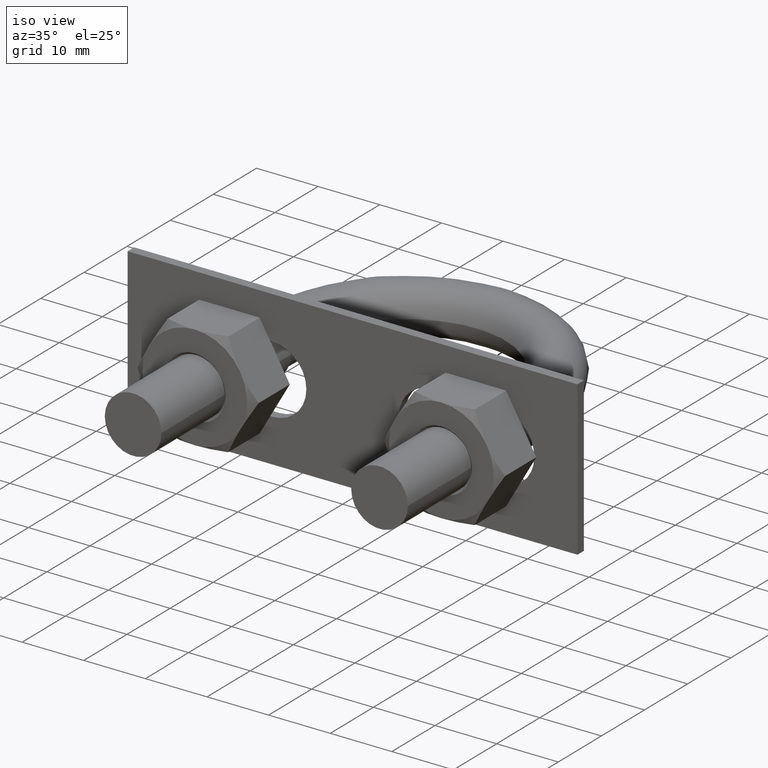
[diagram: clean part render]
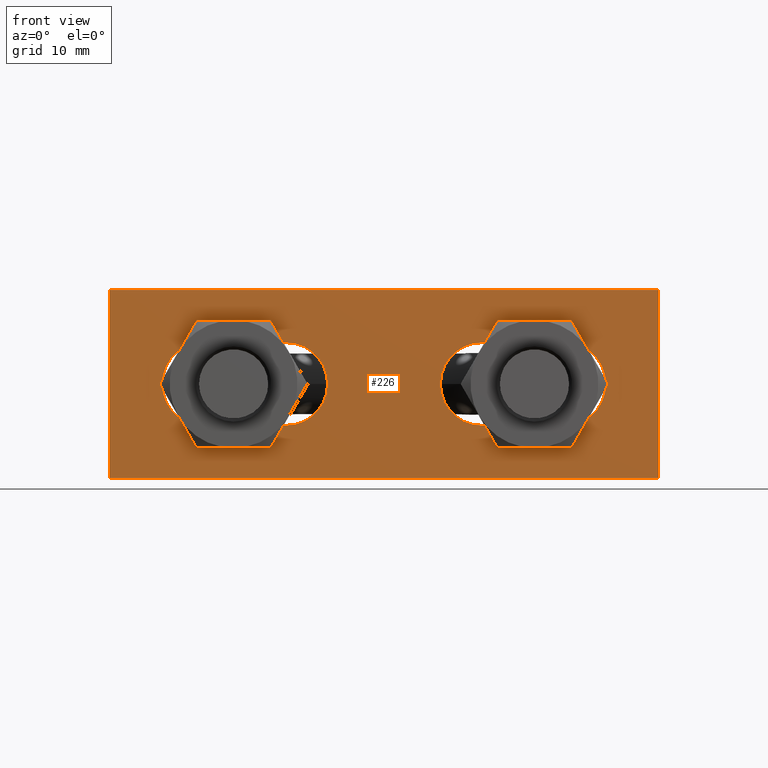
[diagram: tour spotlight — one face highlighted and labeled with its STEP entity id]
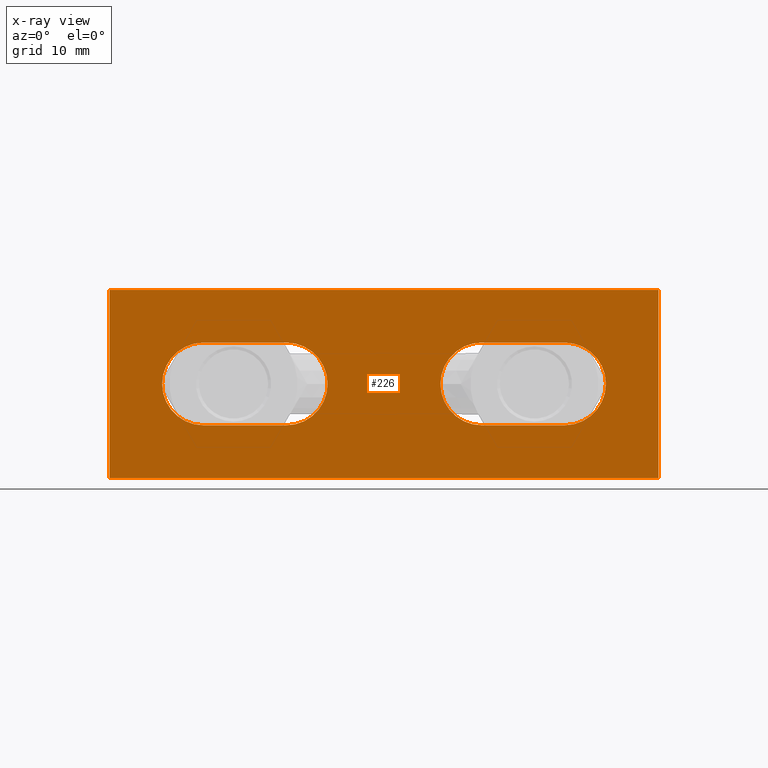
[diagram: x-ray of the same camera — body ghosted, this tour face saturated]
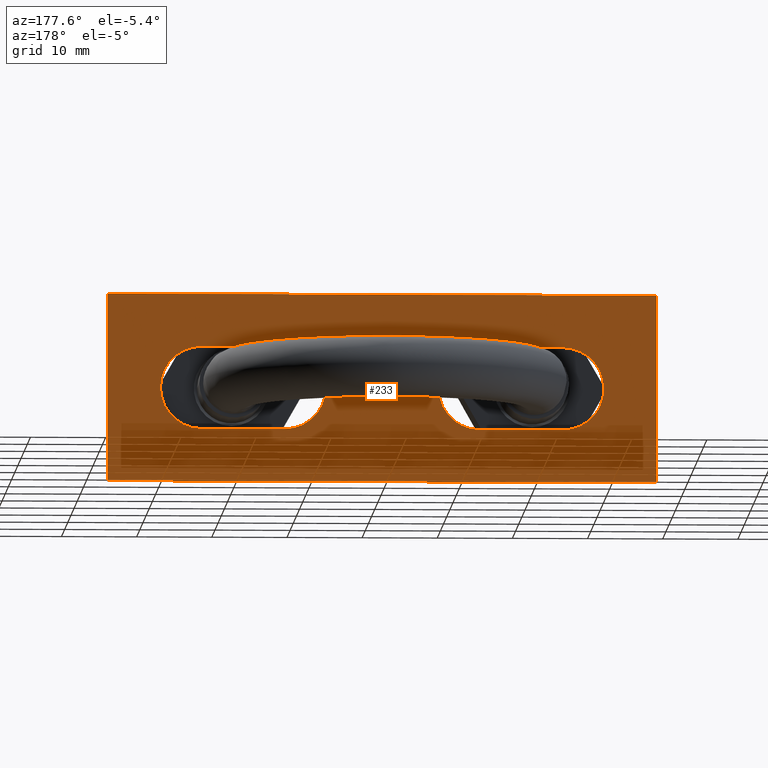
[diagram: tour spotlight — one face highlighted and labeled with its STEP entity id]
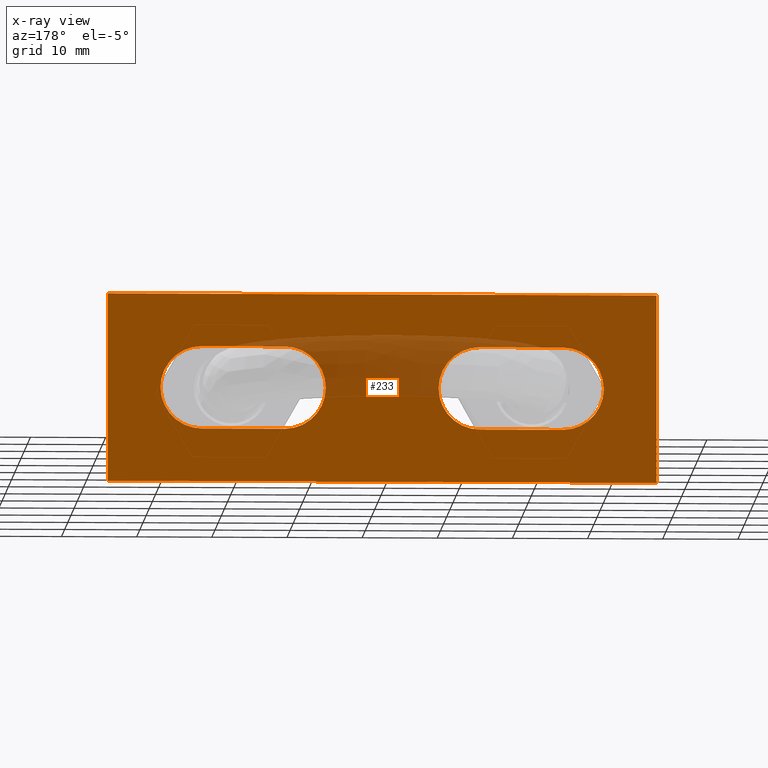
[diagram: x-ray of the same camera — body ghosted, this tour face saturated]
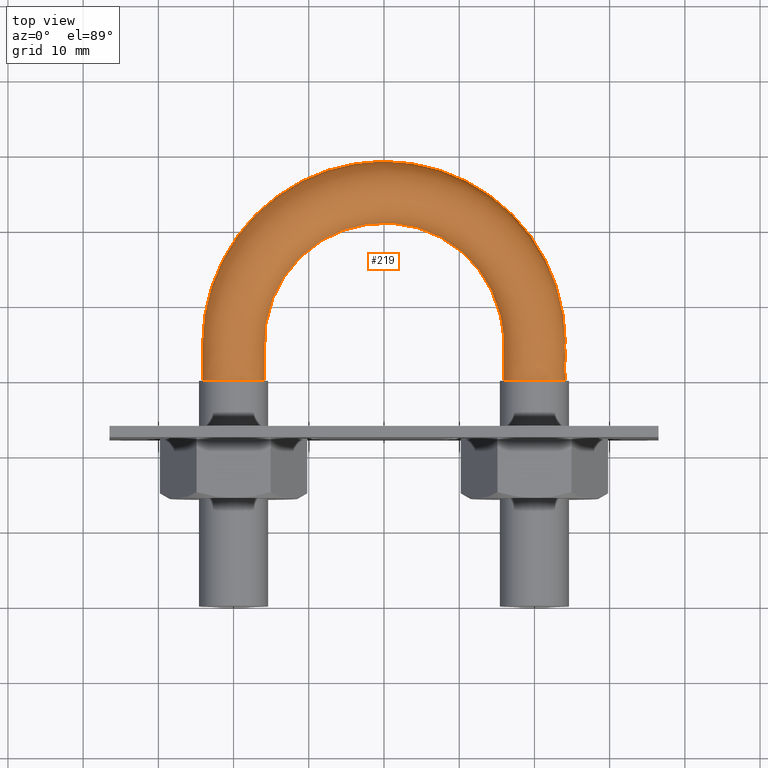
[diagram: tour spotlight — one face highlighted and labeled with its STEP entity id]
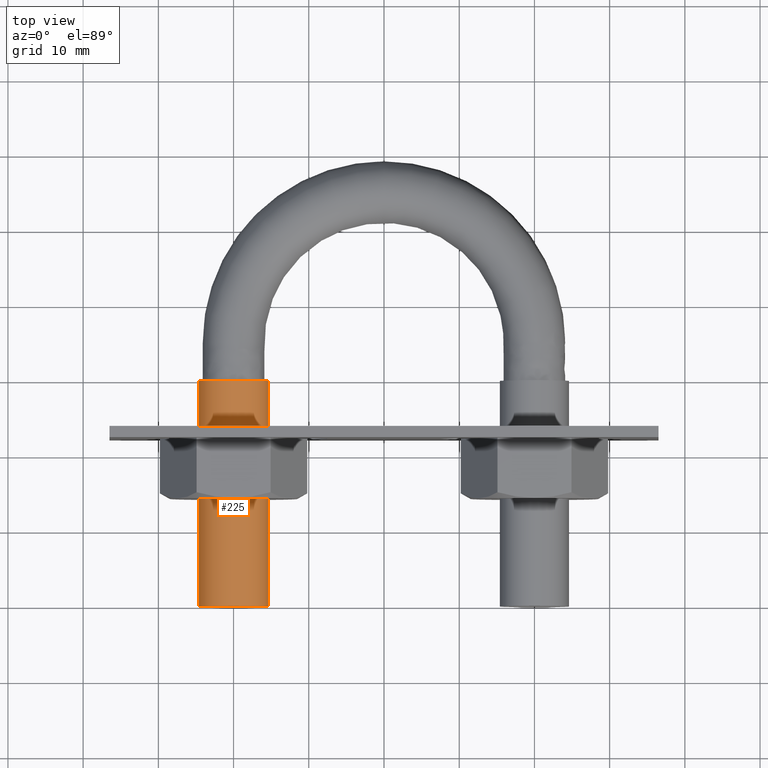
[diagram: tour spotlight — one face highlighted and labeled with its STEP entity id]
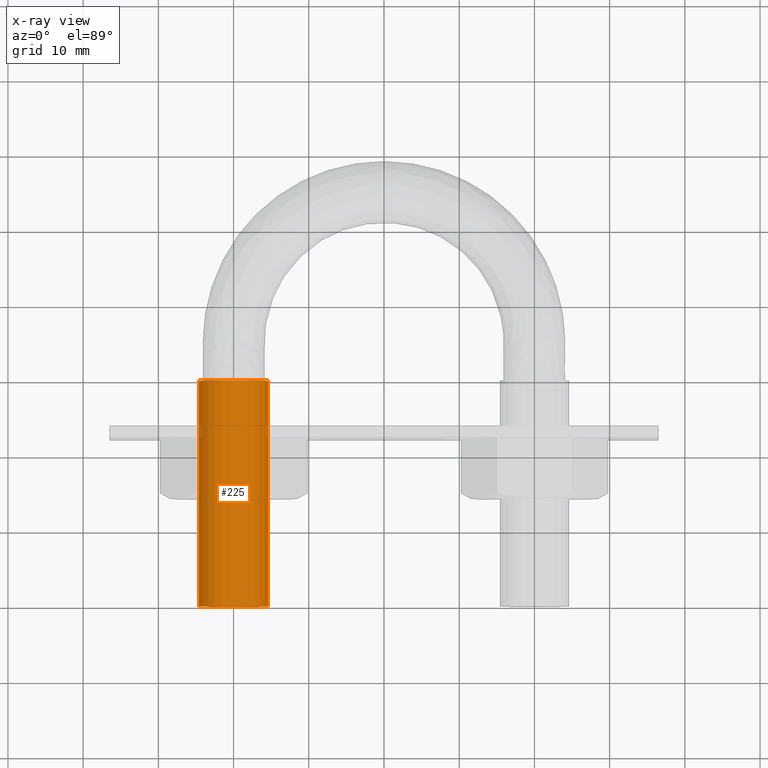
[diagram: x-ray of the same camera — body ghosted, this tour face saturated]
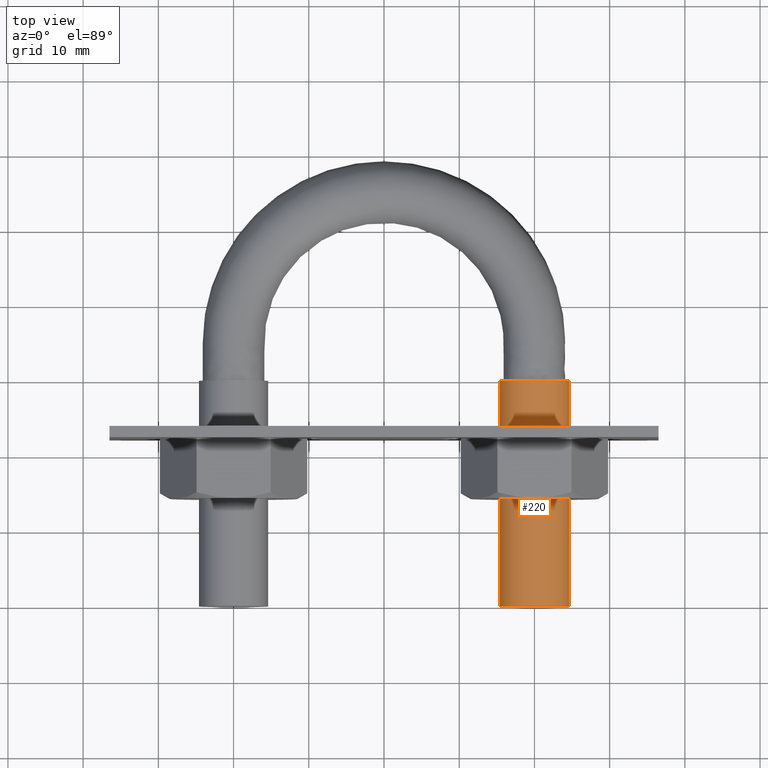
[diagram: tour spotlight — one face highlighted and labeled with its STEP entity id]
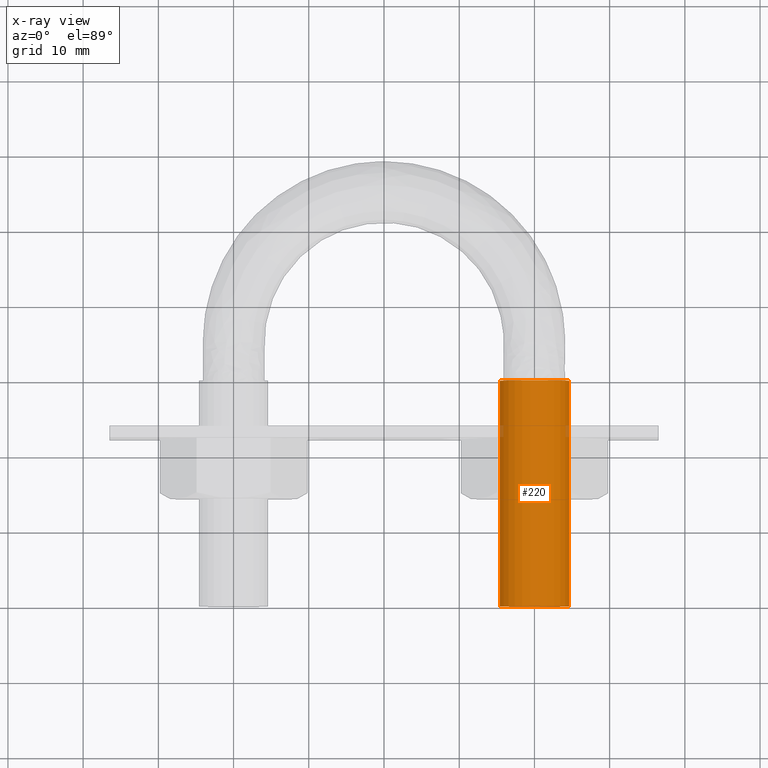
[diagram: x-ray of the same camera — body ghosted, this tour face saturated]
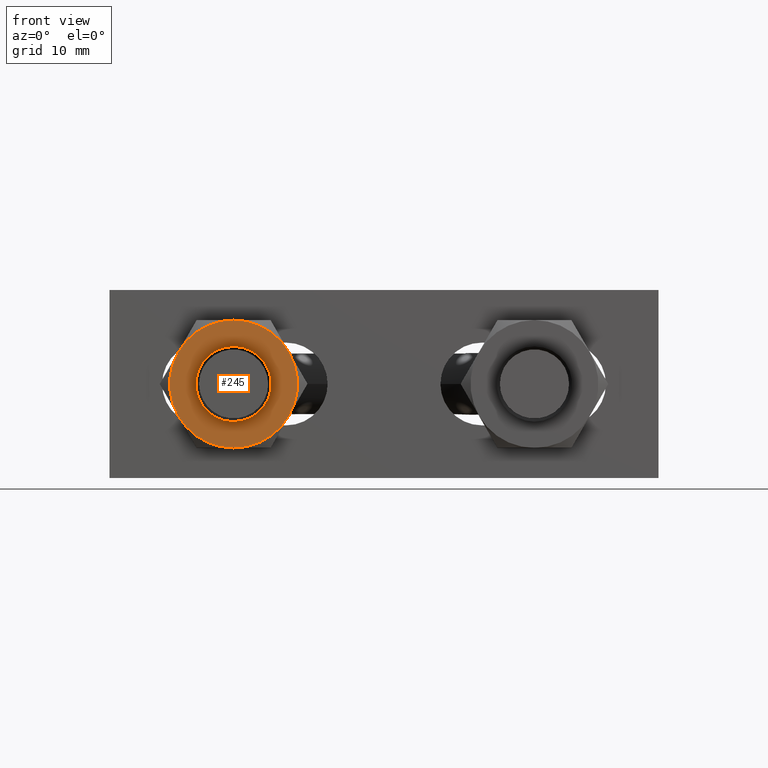
[diagram: tour spotlight — one face highlighted and labeled with its STEP entity id]
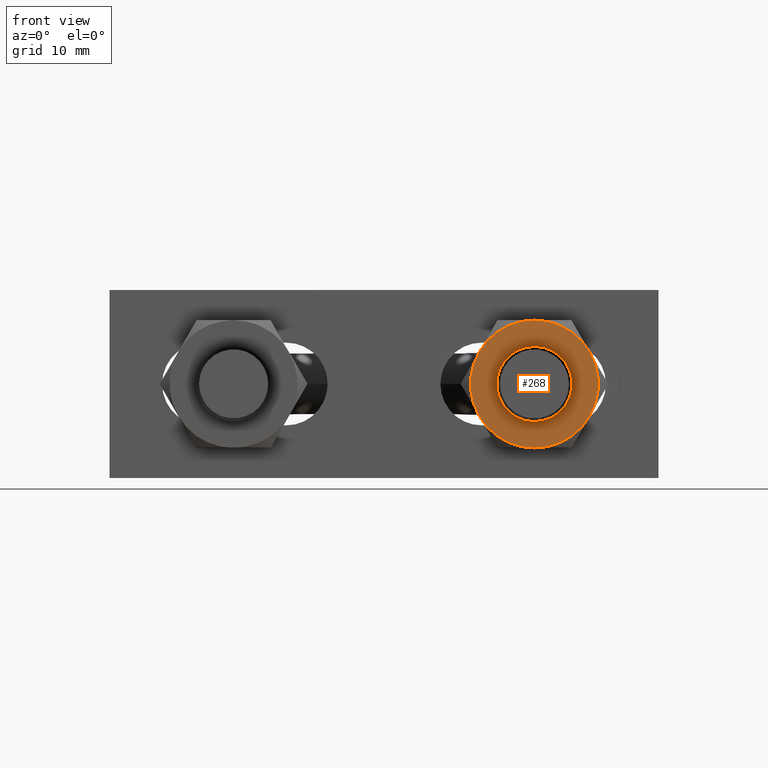
[diagram: tour spotlight — one face highlighted and labeled with its STEP entity id]
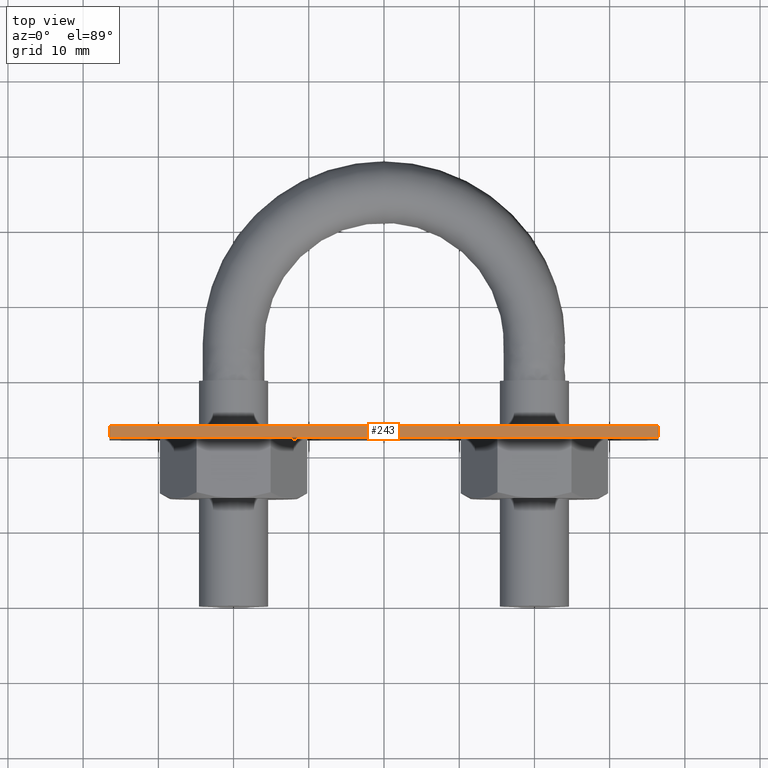
[diagram: tour spotlight — one face highlighted and labeled with its STEP entity id]
A machine part: a face-by-face anatomy tour. The part has 71 B-rep faces; the first image is the clean iso view, then the 8 largest visible faces are spotlighted one at a time (largest first), each with its STEP entity span.

Face 1 — front view, entity #226. An x-ray twin of the same camera follows (body ghosted, this face saturated) — the face is partly hidden behind the body. In plain terms, the highlighted planar face has unit normal (0, -1, 0).
Definition (entity closure, byte-faithful):
#226 = ADVANCED_FACE( '', ( #310, #311, #312 ), #313, .T. );
#310 = FACE_BOUND( '', #630, .T. );
#311 = FACE_OUTER_BOUND( '', #631, .T. );
#312 = FACE_BOUND( '', #632, .T. );
#313 = PLANE( '', #633 );
#630 = EDGE_LOOP( '', ( #802, #803, #804, #805, #806, #807 ) );
#631 = EDGE_LOOP( '', ( #808, #809, #810, #811 ) );
#632 = EDGE_LOOP( '', ( #812, #813, #814, #815, #816, #817 ) );
#633 = AXIS2_PLACEMENT_3D( '', #818, #819, #820 );
#802 = ORIENTED_EDGE( '', *, *, #1304, .F. );
#803 = ORIENTED_EDGE( '', *, *, #1305, .F. );
#804 = ORIENTED_EDGE( '', *, *, #1306, .F. );
#805 = ORIENTED_EDGE( '', *, *, #1307, .F. );
#806 = ORIENTED_EDGE( '', *, *, #1308, .F. );
#807 = ORIENTED_EDGE( '', *, *, #1309, .F. );
#808 = ORIENTED_EDGE( '', *, *, #1310, .T. );
#809 = ORIENTED_EDGE( '', *, *, #1311, .T. );
#810 = ORIENTED_EDGE( '', *, *, #1312, .T. );
#811 = ORIENTED_EDGE( '', *, *, #1313, .T. );
#812 = ORIENTED_EDGE( '', *, *, #1314, .F. );
#813 = ORIENTED_EDGE( '', *, *, #1315, .F. );
#814 = ORIENTED_EDGE( '', *, *, #1316, .F. );
#815 = ORIENTED_EDGE( '', *, *, #1317, .F. );
#816 = ORIENTED_EDGE( '', *, *, #1318, .F. );
#817 = ORIENTED_EDGE( '', *, *, #1319, .F. );
#818 = CARTESIAN_POINT( '', ( -36.5000000000000, -7.70000000000000, -12.5000000000000 ) );
#819 = DIRECTION( '', ( 0.000000000000000, -1.00000000000000, 6.12303176911189E-017 ) );
#820 = DIRECTION( '', ( 0.000000000000000, -6.12303176911189E-017, -1.00000000000000 ) );
#1304 = EDGE_CURVE( '', #1468, #1469, #1470, .F. );
#1305 = EDGE_CURVE( '', #1471, #1468, #1472, .F. );
#1306 = EDGE_CURVE( '', #1473, #1471, #1474, .F. );
#1307 = EDGE_CURVE( '', #1475, #1473, #1476, .F. );
#1308 = EDGE_CURVE( '', #1477, #1475, #1478, .F. );
#1309 = EDGE_CURVE( '', #1469, #1477, #1479, .F. );
#1310 = EDGE_CURVE( '', #1480, #1481, #1482, .T. );
#1311 = EDGE_CURVE( '', #1481, #1483, #1484, .T. );
#1312 = EDGE_CURVE( '', #1483, #1485, #1486, .T. );
#1313 = EDGE_CURVE( '', #1485, #1480, #1487, .T. );
#1314 = EDGE_CURVE( '', #1488, #1489, #1490, .F. );
#1315 = EDGE_CURVE( '', #1491, #1488, #1492, .F. );
#1316 = EDGE_CURVE( '', #1493, #1491, #1494, .F. );
#1317 = EDGE_CURVE( '', #1495, #1493, #1496, .F. );
#1318 = EDGE_CURVE( '', #1497, #1495, #1498, .F. );
#1319 = EDGE_CURVE( '', #1489, #1497, #1499, .F. );
#1468 = VERTEX_POINT( '', #1750 );
#1469 = VERTEX_POINT( '', #1751 );
#1470 = LINE( '', #1752, #1753 );
#1471 = VERTEX_POINT( '', #1754 );
#1472 = CIRCLE( '', #1755, 5.50000000000000 );
#1473 = VERTEX_POINT( '', #1756 );
#1474 = CIRCLE( '', #1757, 5.50000000000000 );
#1475 = VERTEX_POINT( '', #1758 );
#1476 = LINE( '', #1759, #1760 );
#1477 = VERTEX_POINT( '', #1761 );
#1478 = CIRCLE( '', #1762, 5.50000000000000 );
#1479 = CIRCLE( '', #1763, 5.50000000000000 );
#1480 = VERTEX_POINT( '', #1764 );
#1481 = VERTEX_POINT( '', #1765 );
#1482 = LINE( '', #1766, #1767 );
#1483 = VERTEX_POINT( '', #1768 );
#1484 = LINE( '', #1769, #1770 );
#1485 = VERTEX_POINT( '', #1771 );
#1486 = LINE( '', #1772, #1773 );
#1487 = LINE( '', #1774, #1775 );
#1488 = VERTEX_POINT( '', #1776 );
#1489 = VERTEX_POINT( '', #1777 );
#1490 = LINE( '', #1778, #1779 );
#1491 = VERTEX_POINT( '', #1780 );
#1492 = CIRCLE( '', #1781, 5.50000000000000 );
#1493 = VERTEX_POINT( '', #1782 );
#1494 = CIRCLE( '', #1783, 5.50000000000000 );
#1495 = VERTEX_POINT( '', #1784 );
#1496 = LINE( '', #1785, #1786 );
#1497 = VERTEX_POINT( '', #1787 );
#1498 = CIRCLE( '', #1788, 5.50000000000000 );
#1499 = CIRCLE( '', #1789, 5.50000000000000 );
#1750 = CARTESIAN_POINT( '', ( -24.0000000000000, -7.70000000000000, -5.50000000000000 ) );
#1751 = CARTESIAN_POINT( '', ( -13.0000000000000, -7.70000000000000, -5.50000000000000 ) );
#1752 = CARTESIAN_POINT( '', ( -24.0000000000000, -7.70000000000000, -5.50000000000000 ) );
#1753 = VECTOR( '', #2218, 1000.00000000000 );
#1754 = CARTESIAN_POINT( '', ( -29.5000000000000, -7.70000000000000, -2.23987420924561E-015 ) );
#1755 = AXIS2_PLACEMENT_3D( '', #2219, #2220, #2221 );
#1756 = CARTESIAN_POINT( '', ( -24.0000000000000, -7.70000000000000, 5.50000000000000 ) );
#1757 = AXIS2_PLACEMENT_3D( '', #2222, #2223, #2224 );
#1758 = CARTESIAN_POINT( '', ( -13.0000000000000, -7.70000000000000, 5.50000000000000 ) );
#1759 = CARTESIAN_POINT( '', ( -13.0000000000000, -7.70000000000000, 5.50000000000000 ) );
#1760 = VECTOR( '', #2225, 1000.00000000000 );
#1761 = CARTESIAN_POINT( '', ( -7.50000000000001, -7.70000000000000, -1.56634071464331E-015 ) );
#1762 = AXIS2_PLACEMENT_3D( '', #2226, #2227, #2228 );
#1763 = AXIS2_PLACEMENT_3D( '', #2229, #2230, #2231 );
#1764 = CARTESIAN_POINT( '', ( -36.5000000000000, -7.70000000000000, 12.5000000000000 ) );
#1765 = CARTESIAN_POINT( '', ( -36.5000000000000, -7.70000000000000, -12.5000000000000 ) );
#1766 = CARTESIAN_POINT( '', ( -36.5000000000000, -7.70000000000000, 12.5000000000000 ) );
#1767 = VECTOR( '', #2232, 1000.00000000000 );
#1768 = CARTESIAN_POINT( '', ( 36.5000000000000, -7.70000000000000, -12.5000000000000 ) );
#1769 = CARTESIAN_POINT( '', ( -36.5000000000000, -7.70000000000000, -12.5000000000000 ) );
#1770 = VECTOR( '', #2233, 1000.00000000000 );
#1771 = CARTESIAN_POINT( '', ( 36.5000000000000, -7.70000000000000, 12.5000000000000 ) );
#1772 = CARTESIAN_POINT( '', ( 36.5000000000000, -7.70000000000000, -12.5000000000000 ) );
#1773 = VECTOR( '', #2234, 1000.00000000000 );
#1774 = CARTESIAN_POINT( '', ( 36.5000000000000, -7.70000000000000, 12.5000000000000 ) );
#1775 = VECTOR( '', #2235, 1000.00000000000 );
#1776 = CARTESIAN_POINT( '', ( 13.0000000000000, -7.70000000000000, -5.50000000000000 ) );
#1777 = CARTESIAN_POINT( '', ( 24.0000000000000, -7.70000000000000, -5.50000000000000 ) );
#1778 = CARTESIAN_POINT( '', ( 13.0000000000000, -7.70000000000000, -5.50000000000000 ) );
#1779 = VECTOR( '', #2236, 1000.00000000000 );
#1780 = CARTESIAN_POINT( '', ( 7.50000000000000, -7.70000000000000, -2.23987420924561E-015 ) );
#1781 = AXIS2_PLACEMENT_3D( '', #2237, #2238, #2239 );
#1782 = CARTESIAN_POINT( '', ( 13.0000000000000, -7.70000000000000, 5.50000000000000 ) );
#1783 = AXIS2_PLACEMENT_3D( '', #2240, #2241, #2242 );
#1784 = CARTESIAN_POINT( '', ( 24.0000000000000, -7.70000000000000, 5.50000000000000 ) );
#1785 = CARTESIAN_POINT( '', ( 24.0000000000000, -7.70000000000000, 5.50000000000000 ) );
#1786 = VECTOR( '', #2243, 1000.00000000000 );
#1787 = CARTESIAN_POINT( '', ( 29.5000000000000, -7.70000000000000, -1.56634071464331E-015 ) );
#1788 = AXIS2_PLACEMENT_3D( '', #2244, #2245, #2246 );
#1789 = AXIS2_PLACEMENT_3D( '', #2247, #2248, #2249 );
#2218 = DIRECTION( '', ( -1.00000000000000, -1.48157618965117E-081, -2.41967744986250E-065 ) );
#2219 = CARTESIAN_POINT( '', ( -24.0000000000000, -7.70000000000000, -1.73472408829388E-015 ) );
#2220 = DIRECTION( '', ( 0.000000000000000, 1.00000000000000, -6.12303176911189E-017 ) );
#2221 = DIRECTION( '', ( 0.000000000000000, 6.12303176911189E-017, 1.00000000000000 ) );
#2222 = CARTESIAN_POINT( '', ( -24.0000000000000, -7.70000000000000, -1.73472408829388E-015 ) );
#2223 = DIRECTION( '', ( 0.000000000000000, 1.00000000000000, -6.12303176911189E-017 ) );
#2224 = DIRECTION( '', ( 0.000000000000000, 6.12303176911189E-017, 1.00000000000000 ) );
#2225 = DIRECTION( '', ( 1.00000000000000, 1.48157618965117E-081, 2.41967744986250E-065 ) );
#2226 = CARTESIAN_POINT( '', ( -13.0000000000000, -7.70000000000000, -1.73472408829388E-015 ) );
#2227 = DIRECTION( '', ( 0.000000000000000, 1.00000000000000, -6.12303176911189E-017 ) );
#2228 = DIRECTION( '', ( 0.000000000000000, 6.12303176911189E-017, 1.00000000000000 ) );
#2229 = CARTESIAN_POINT( '', ( -13.0000000000000, -7.70000000000000, -1.73472408829388E-015 ) );
#2230 = DIRECTION( '', ( 0.000000000000000, 1.00000000000000, -6.12303176911189E-017 ) );
#2231 = DIRECTION( '', ( 0.000000000000000, 6.12303176911189E-017, 1.00000000000000 ) );
#2232 = DIRECTION( '', ( 0.000000000000000, -6.12303176911189E-017, -1.00000000000000 ) );
#2233 = DIRECTION( '', ( 1.00000000000000, 0.000000000000000, 0.000000000000000 ) );
#2234 = DIRECTION( '', ( 0.000000000000000, 6.12303176911189E-017, 1.00000000000000 ) );
#2235 = DIRECTION( '', ( -1.00000000000000, 0.000000000000000, 0.000000000000000 ) );
#2236 = DIRECTION( '', ( -1.00000000000000, -1.65175178900686E-081, -2.69760447322722E-065 ) );
#2237 = CARTESIAN_POINT( '', ( 13.0000000000000, -7.70000000000000, -1.73472408829388E-015 ) );
#2238 = DIRECTION( '', ( 0.000000000000000, 1.00000000000000, -6.12303176911189E-017 ) );
#2239 = DIRECTION( '', ( 0.000000000000000, 6.12303176911189E-017, 1.00000000000000 ) );
#2240 = CARTESIAN_POINT( '', ( 13.0000000000000, -7.70000000000000, -1.73472408829388E-015 ) );
#2241 = DIRECTION( '', ( 0.000000000000000, 1.00000000000000, -6.12303176911189E-017 ) );
#2242 = DIRECTION( '', ( 0.000000000000000, 6.12303176911189E-017, 1.00000000000000 ) );
#2243 = DIRECTION( '', ( 1.00000000000000, 1.65175178900686E-081, 2.69760447322722E-065 ) );
#2244 = CARTESIAN_POINT( '', ( 24.0000000000000, -7.70000000000000, -1.73472408829388E-015 ) );
#2245 = DIRECTION( '', ( 0.000000000000000, 1.00000000000000, -6.12303176911189E-017 ) );
#2246 = DIRECTION( '', ( 0.000000000000000, 6.12303176911189E-017, 1.00000000000000 ) );
#2247 = CARTESIAN_POINT( '', ( 24.0000000000000, -7.70000000000000, -1.73472408829388E-015 ) );
#2248 = DIRECTION( '', ( 0.000000000000000, 1.00000000000000, -6.12303176911189E-017 ) );
#2249 = DIRECTION( '', ( 0.000000000000000, 6.12303176911189E-017, 1.00000000000000 ) );

Face 2 — auxiliary view, entity #233. An x-ray twin of the same camera follows (body ghosted, this face saturated) — the face is partly hidden behind the body. In plain terms, the highlighted planar face has unit normal (0, -1, 0).
Definition (entity closure, byte-faithful):
#233 = ADVANCED_FACE( '', ( #326, #327, #328 ), #329, .F. );
#326 = FACE_BOUND( '', #646, .T. );
#327 = FACE_BOUND( '', #647, .T. );
#328 = FACE_OUTER_BOUND( '', #648, .T. );
#329 = PLANE( '', #649 );
#646 = EDGE_LOOP( '', ( #863, #864, #865, #866, #867, #868 ) );
#647 = EDGE_LOOP( '', ( #869, #870, #871, #872, #873, #874 ) );
#648 = EDGE_LOOP( '', ( #875, #876, #877, #878 ) );
#649 = AXIS2_PLACEMENT_3D( '', #879, #880, #881 );
#863 = ORIENTED_EDGE( '', *, *, #1334, .T. );
#864 = ORIENTED_EDGE( '', *, *, #1335, .T. );
#865 = ORIENTED_EDGE( '', *, *, #1336, .T. );
#866 = ORIENTED_EDGE( '', *, *, #1337, .T. );
#867 = ORIENTED_EDGE( '', *, *, #1338, .T. );
#868 = ORIENTED_EDGE( '', *, *, #1339, .T. );
#869 = ORIENTED_EDGE( '', *, *, #1333, .T. );
#870 = ORIENTED_EDGE( '', *, *, #1326, .T. );
#871 = ORIENTED_EDGE( '', *, *, #1324, .T. );
#872 = ORIENTED_EDGE( '', *, *, #1340, .T. );
#873 = ORIENTED_EDGE( '', *, *, #1329, .T. );
#874 = ORIENTED_EDGE( '', *, *, #1332, .T. );
#875 = ORIENTED_EDGE( '', *, *, #1320, .F. );
#876 = ORIENTED_EDGE( '', *, *, #1341, .F. );
#877 = ORIENTED_EDGE( '', *, *, #1342, .F. );
#878 = ORIENTED_EDGE( '', *, *, #1343, .F. );
#879 = CARTESIAN_POINT( '', ( -36.5000000000000, -6.20000000000000, -12.5000000000000 ) );
#880 = DIRECTION( '', ( 0.000000000000000, -1.00000000000000, 6.12303176911189E-017 ) );
#881 = DIRECTION( '', ( 0.000000000000000, -6.12303176911189E-017, -1.00000000000000 ) );
#1320 = EDGE_CURVE( '', #1500, #1501, #1502, .T. );
#1324 = EDGE_CURVE( '', #1507, #1505, #1508, .T. );
#1326 = EDGE_CURVE( '', #1510, #1507, #1511, .T. );
#1329 = EDGE_CURVE( '', #1515, #1513, #1516, .T. );
#1332 = EDGE_CURVE( '', #1513, #1518, #1520, .T. );
#1333 = EDGE_CURVE( '', #1518, #1510, #1521, .T. );
#1334 = EDGE_CURVE( '', #1522, #1523, #1524, .T. );
#1335 = EDGE_CURVE( '', #1523, #1525, #1526, .T. );
#1336 = EDGE_CURVE( '', #1525, #1527, #1528, .T. );
#1337 = EDGE_CURVE( '', #1527, #1529, #1530, .T. );
#1338 = EDGE_CURVE( '', #1529, #1531, #1532, .T. );
#1339 = EDGE_CURVE( '', #1531, #1522, #1533, .T. );
#1340 = EDGE_CURVE( '', #1505, #1515, #1534, .T. );
#1341 = EDGE_CURVE( '', #1535, #1500, #1536, .T. );
#1342 = EDGE_CURVE( '', #1537, #1535, #1538, .T. );
#1343 = EDGE_CURVE( '', #1501, #1537, #1539, .T. );
#1500 = VERTEX_POINT( '', #1790 );
#1501 = VERTEX_POINT( '', #1791 );
#1502 = LINE( '', #1792, #1793 );
#1505 = VERTEX_POINT( '', #1798 );
#1507 = VERTEX_POINT( '', #1801 );
#1508 = LINE( '', #1802, #1803 );
#1510 = VERTEX_POINT( '', #1806 );
#1511 = CIRCLE( '', #1807, 5.50000000000000 );
#1513 = VERTEX_POINT( '', #1810 );
#1515 = VERTEX_POINT( '', #1813 );
#1516 = CIRCLE( '', #1814, 5.50000000000000 );
#1518 = VERTEX_POINT( '', #1817 );
#1520 = LINE( '', #1820, #1821 );
#1521 = CIRCLE( '', #1822, 5.50000000000000 );
#1522 = VERTEX_POINT( '', #1823 );
#1523 = VERTEX_POINT( '', #1824 );
#1524 = CIRCLE( '', #1825, 5.50000000000000 );
#1525 = VERTEX_POINT( '', #1826 );
#1526 = CIRCLE( '', #1827, 5.50000000000000 );
#1527 = VERTEX_POINT( '', #1828 );
#1528 = LINE( '', #1829, #1830 );
#1529 = VERTEX_POINT( '', #1831 );
#1530 = CIRCLE( '', #1832, 5.50000000000000 );
#1531 = VERTEX_POINT( '', #1833 );
#1532 = CIRCLE( '', #1834, 5.50000000000000 );
#1533 = LINE( '', #1835, #1836 );
#1534 = CIRCLE( '', #1837, 5.50000000000000 );
#1535 = VERTEX_POINT( '', #1838 );
#1536 = LINE( '', #1839, #1840 );
#1537 = VERTEX_POINT( '', #1841 );
#1538 = LINE( '', #1842, #1843 );
#1539 = LINE( '', #1844, #1845 );
#1790 = CARTESIAN_POINT( '', ( -36.5000000000000, -6.20000000000000, 12.5000000000000 ) );
#1791 = CARTESIAN_POINT( '', ( -36.5000000000000, -6.20000000000000, -12.5000000000000 ) );
#1792 = CARTESIAN_POINT( '', ( -36.5000000000000, -6.20000000000000, 12.5000000000000 ) );
#1793 = VECTOR( '', #2250, 1000.00000000000 );
#1798 = CARTESIAN_POINT( '', ( -13.0000000000000, -6.19999850004529, -5.50000000000000 ) );
#1801 = CARTESIAN_POINT( '', ( -24.0000000000000, -6.19999850004529, -5.50000000000000 ) );
#1802 = CARTESIAN_POINT( '', ( -24.0000000000000, -6.19999850004529, -5.50000000000000 ) );
#1803 = VECTOR( '', #2254, 1000.00000000000 );
#1806 = CARTESIAN_POINT( '', ( -29.5000000000000, -6.19999850004529, -1.73472347597681E-015 ) );
#1807 = AXIS2_PLACEMENT_3D( '', #2256, #2257, #2258 );
#1810 = CARTESIAN_POINT( '', ( -13.0000000000000, -6.19999850004529, 5.50000000000000 ) );
#1813 = CARTESIAN_POINT( '', ( -7.50000000000001, -6.19999850004529, -1.73472347597681E-015 ) );
#1814 = AXIS2_PLACEMENT_3D( '', #2261, #2262, #2263 );
#1817 = CARTESIAN_POINT( '', ( -24.0000000000000, -6.19999850004529, 5.50000000000000 ) );
#1820 = CARTESIAN_POINT( '', ( -13.0000000000000, -6.19999850004529, 5.50000000000000 ) );
#1821 = VECTOR( '', #2266, 1000.00000000000 );
#1822 = AXIS2_PLACEMENT_3D( '', #2267, #2268, #2269 );
#1823 = CARTESIAN_POINT( '', ( 13.0000000000000, -6.19999850004529, 5.50000000000000 ) );
#1824 = CARTESIAN_POINT( '', ( 7.50000000000000, -6.19999850004529, -1.73472347597681E-015 ) );
#1825 = AXIS2_PLACEMENT_3D( '', #2270, #2271, #2272 );
#1826 = CARTESIAN_POINT( '', ( 13.0000000000000, -6.19999850004529, -5.50000000000000 ) );
#1827 = AXIS2_PLACEMENT_3D( '', #2273, #2274, #2275 );
#1828 = CARTESIAN_POINT( '', ( 24.0000000000000, -6.19999850004529, -5.50000000000000 ) );
#1829 = CARTESIAN_POINT( '', ( 13.0000000000000, -6.19999850004529, -5.50000000000000 ) );
#1830 = VECTOR( '', #2276, 1000.00000000000 );
#1831 = CARTESIAN_POINT( '', ( 29.5000000000000, -6.19999850004529, -1.73472347597681E-015 ) );
#1832 = AXIS2_PLACEMENT_3D( '', #2277, #2278, #2279 );
#1833 = CARTESIAN_POINT( '', ( 24.0000000000000, -6.19999850004529, 5.50000000000000 ) );
#1834 = AXIS2_PLACEMENT_3D( '', #2280, #2281, #2282 );
#1835 = CARTESIAN_POINT( '', ( 24.0000000000000, -6.19999850004529, 5.50000000000000 ) );
#1836 = VECTOR( '', #2283, 1000.00000000000 );
#1837 = AXIS2_PLACEMENT_3D( '', #2284, #2285, #2286 );
#1838 = CARTESIAN_POINT( '', ( 36.5000000000000, -6.20000000000000, 12.5000000000000 ) );
#1839 = CARTESIAN_POINT( '', ( 36.5000000000000, -6.20000000000000, 12.5000000000000 ) );
#1840 = VECTOR( '', #2287, 1000.00000000000 );
#1841 = CARTESIAN_POINT( '', ( 36.5000000000000, -6.20000000000000, -12.5000000000000 ) );
#1842 = CARTESIAN_POINT( '', ( 36.5000000000000, -6.20000000000000, -12.5000000000000 ) );
#1843 = VECTOR( '', #2288, 1000.00000000000 );
#1844 = CARTESIAN_POINT( '', ( -36.5000000000000, -6.20000000000000, -12.5000000000000 ) );
#1845 = VECTOR( '', #2289, 1000.00000000000 );
#2250 = DIRECTION( '', ( 0.000000000000000, -6.12303176911189E-017, -1.00000000000000 ) );
#2254 = DIRECTION( '', ( 1.00000000000000, -4.85957220016763E-049, 5.39520894645443E-065 ) );
#2256 = CARTESIAN_POINT( '', ( -24.0000000000000, -6.19999850004529, -1.73472347597681E-015 ) );
#2257 = DIRECTION( '', ( 2.47625856777108E-097, -1.00000000000000, 6.12303176911189E-017 ) );
#2258 = DIRECTION( '', ( -1.00000000000000, -1.48157618965117E-081, -2.41967744986250E-065 ) );
#2261 = CARTESIAN_POINT( '', ( -13.0000000000000, -6.19999850004529, -1.73472347597681E-015 ) );
#2262 = DIRECTION( '', ( -3.81588297869834E-081, -1.00000000000000, 2.18932451870829E-016 ) );
#2263 = DIRECTION( '', ( 1.00000000000000, 1.48157618965117E-081, 2.41967744986250E-065 ) );
#2266 = DIRECTION( '', ( -1.00000000000000, 4.85957220016763E-049, -5.39520894645443E-065 ) );
#2267 = CARTESIAN_POINT( '', ( -24.0000000000000, -6.19999850004529, -1.73472347597681E-015 ) );
#2268 = DIRECTION( '', ( -3.81588297869833E-081, -1.00000000000000, 2.18932451870829E-016 ) );
#2269 = DIRECTION( '', ( -2.41967744986250E-065, 2.18932451870829E-016, 1.00000000000000 ) );
#2270 = CARTESIAN_POINT( '', ( 13.0000000000000, -6.19999850004529, -1.73472347597681E-015 ) );
#2271 = DIRECTION( '', ( -4.25417982600664E-081, -1.00000000000000, 2.18932451870829E-016 ) );
#2272 = DIRECTION( '', ( -2.69760447322722E-065, 2.18932451870829E-016, 1.00000000000000 ) );
#2273 = CARTESIAN_POINT( '', ( 13.0000000000000, -6.19999850004529, -1.73472347597681E-015 ) );
#2274 = DIRECTION( '', ( 0.000000000000000, -1.00000000000000, 6.12303176911189E-017 ) );
#2275 = DIRECTION( '', ( -1.00000000000000, -1.65175178900686E-081, -2.69760447322722E-065 ) );
#2276 = DIRECTION( '', ( 1.00000000000000, 0.000000000000000, 2.69760447322722E-065 ) );
#2277 = CARTESIAN_POINT( '', ( 24.0000000000000, -6.19999850004529, -1.73472347597681E-015 ) );
#2278 = DIRECTION( '', ( 2.47625856777108E-097, -1.00000000000000, 6.12303176911189E-017 ) );
#2279 = DIRECTION( '', ( 2.69760447322722E-065, -6.12303176911189E-017, -1.00000000000000 ) );
#2280 = CARTESIAN_POINT( '', ( 24.0000000000000, -6.19999850004529, -1.73472347597681E-015 ) );
#2281 = DIRECTION( '', ( -4.25417982600664E-081, -1.00000000000000, 2.18932451870829E-016 ) );
#2282 = DIRECTION( '', ( 1.00000000000000, 1.65175178900686E-081, 2.69760447322722E-065 ) );
#2283 = DIRECTION( '', ( -1.00000000000000, 0.000000000000000, -2.69760447322722E-065 ) );
#2284 = CARTESIAN_POINT( '', ( -13.0000000000000, -6.19999850004529, -1.73472347597681E-015 ) );
#2285 = DIRECTION( '', ( 0.000000000000000, -1.00000000000000, 6.12303176911189E-017 ) );
#2286 = DIRECTION( '', ( 2.41967744986250E-065, -6.12303176911189E-017, -1.00000000000000 ) );
#2287 = DIRECTION( '', ( -1.00000000000000, 0.000000000000000, 0.000000000000000 ) );
#2288 = DIRECTION( '', ( 0.000000000000000, 6.12303176911189E-017, 1.00000000000000 ) );
#2289 = DIRECTION( '', ( 1.00000000000000, 0.000000000000000, 0.000000000000000 ) );

Face 3 — top view, entity #219. In plain terms, the highlighted face is a freeform B-spline surface patch.
Definition (entity closure, byte-faithful):
#219 = ADVANCED_FACE( '', ( #291, #292 ), #293, .F. );
#291 = FACE_OUTER_BOUND( '', #452, .T. );
#292 = FACE_OUTER_BOUND( '', #453, .T. );
#293 = B_SPLINE_SURFACE_WITH_KNOTS( '', 3, 3, ( ( #454, #455, #456, #457, #458, #459, #460, #461, #462, #463, #464, #465, #466, #467, #468, #469 ), ( #470, #471, #472, #473, #474, #475, #476, #477, #478, #479, #480, #481, #482, #483, #484, #485 ), ( #486, #487, #488, #489, #490, #491, #492, #493, #494, #495, #496, #497, #498, #499, #500, #501 ), ( #502, #503, #504, #505, #506, #507, #508, #509, #510, #511, #512, #513, #514, #515, #516, #517 ), ( #518, #519, #520, #521, #522, #523, #524, #525, #526, #527, #528, #529, #530, #531, #532, #533 ), ( #534, #535, #536, #537, #538, #539, #540, #541, #542, #543, #544, #545, #546, #547, #548, #549 ), ( #550, #551, #552, #553, #554, #555, #556, #557, #558, #559, #560, #561, #562, #563, #564, #565 ), ( #566, #567, #568, #569, #570, #571, #572, #573, #574, #575, #576, #577, #578, #579, #580, #581 ), ( #582, #583, #584, #585, #586, #587, #588, #589, #590, #591, #592, #593, #594, #595, #596, #597 ), ( #598, #599, #600, #601, #602, #603, #604, #605, #606, #607, #608, #609, #610, #611, #612, #613 ) ), .UNSPECIFIED., .T., .F., .F., ( 2, 1, 1, 1, 1, 1, 1, 1, 1, 1, 1, 2 ), ( 4, 3, 1, 1, 1, 1, 1, 1, 3, 4 ), ( -0.285714285714286, -0.142857142857143, 0.000000000000000, 0.142857142857143, 0.285714285714286, 0.428571428571429, 0.571428571428571, 0.714285714285714, 0.857142857142857, 1.00000000000000, 1.14285714285714, 1.28571428571429 ), ( 0.000000000000000, 1.00000000000000, 1.50000000000000, 2.00000000000000, 3.00000000000000, 4.00000000000000, 5.00000000000000, 5.50000000000000, 6.00000000000000, 7.00000000000000 ), .UNSPECIFIED. );
#452 = EDGE_LOOP( '', ( #772 ) );
#453 = EDGE_LOOP( '', ( #773 ) );
#454 = CARTESIAN_POINT( '', ( -17.0768231851220, -2.21303224179142E-015, -3.66554778583225 ) );
#455 = CARTESIAN_POINT( '', ( -17.0768231851220, 1.70000000000002, -3.66554778583225 ) );
#456 = CARTESIAN_POINT( '', ( -17.0768231851219, 3.40000000000005, -3.66554778583225 ) );
#457 = CARTESIAN_POINT( '', ( -17.0768231851219, 5.10000000000008, -3.66554778583225 ) );
#458 = CARTESIAN_POINT( '', ( -17.0768231851219, 6.87589522768872, -3.66554778583225 ) );
#459 = CARTESIAN_POINT( '', ( -16.4940506041925, 10.4641044421145, -3.66554778583225 ) );
#460 = CARTESIAN_POINT( '', ( -13.2362336290776, 16.9218023077661, -3.66554778583225 ) );
#461 = CARTESIAN_POINT( '', ( -5.63524681783554, 22.4458293828465, -3.66554778583225 ) );
#462 = CARTESIAN_POINT( '', ( 5.63524681783563, 22.4458293828465, -3.66554778583225 ) );
#463 = CARTESIAN_POINT( '', ( 13.2362336290776, 16.9218023077660, -3.66554778583225 ) );
#464 = CARTESIAN_POINT( '', ( 16.4940506041925, 10.4641044421144, -3.66554778583224 ) );
#465 = CARTESIAN_POINT( '', ( 17.0768231851219, 6.87589522768864, -3.66554778583225 ) );
#466 = CARTESIAN_POINT( '', ( 17.0768231851219, 5.10000000000000, -3.66554778583225 ) );
#467 = CARTESIAN_POINT( '', ( 17.0768231851219, 3.40000000000000, -3.66554778583225 ) );
#468 = CARTESIAN_POINT( '', ( 17.0768231851219, 1.69999999999999, -3.66554778583225 ) );
#469 = CARTESIAN_POINT( '', ( 17.0768231851219, -1.36956844490321E-014, -3.66554778583225 ) );
#470 = CARTESIAN_POINT( '', ( -15.3115884074390, -3.18945006064990E-015, 0.000000000000000 ) );
#471 = CARTESIAN_POINT( '', ( -15.3115884074390, 1.70000000000002, 0.000000000000000 ) );
#472 = CARTESIAN_POINT( '', ( -15.3115884074390, 3.40000000000005, 0.000000000000000 ) );
#473 = CARTESIAN_POINT( '', ( -15.3115884074390, 5.10000000000008, 0.000000000000000 ) );
#474 = CARTESIAN_POINT( '', ( -15.3115884074390, 6.68470871177389, 0.000000000000000 ) );
#475 = CARTESIAN_POINT( '', ( -14.7874642643519, 9.91253728966583, 0.000000000000000 ) );
#476 = CARTESIAN_POINT( '', ( -11.8689305787968, 15.6981107389134, 0.000000000000000 ) );
#477 = CARTESIAN_POINT( '', ( -5.05233195645793, 20.6532047274269, 0.000000000000000 ) );
#478 = CARTESIAN_POINT( '', ( 5.05233195645803, 20.6532047274269, 0.000000000000000 ) );
#479 = CARTESIAN_POINT( '', ( 11.8689305787968, 15.6981107389133, 0.000000000000000 ) );
#480 = CARTESIAN_POINT( '', ( 14.7874642643519, 9.91253728966575, 0.000000000000000 ) );
#481 = CARTESIAN_POINT( '', ( 15.3115884074390, 6.68470871177380, 0.000000000000000 ) );
#482 = CARTESIAN_POINT( '', ( 15.3115884074390, 5.09999999999999, 0.000000000000000 ) );
#483 = CARTESIAN_POINT( '', ( 15.3115884074390, 3.39999999999999, 0.000000000000000 ) );
#484 = CARTESIAN_POINT( '', ( 15.3115884074390, 1.69999999999998, 0.000000000000000 ) );
#485 = CARTESIAN_POINT( '', ( 15.3115884074390, -2.23261504245494E-014, 0.000000000000000 ) );
#486 = CARTESIAN_POINT( '', ( -17.0768231851220, -1.76414693091445E-015, 3.66554778583225 ) );
#487 = CARTESIAN_POINT( '', ( -17.0768231851220, 1.70000000000002, 3.66554778583225 ) );
#488 = CARTESIAN_POINT( '', ( -17.0768231851219, 3.40000000000005, 3.66554778583225 ) );
#489 = CARTESIAN_POINT( '', ( -17.0768231851219, 5.10000000000008, 3.66554778583225 ) );
#490 = CARTESIAN_POINT( '', ( -17.0768231851219, 6.87589522768872, 3.66554778583225 ) );
#491 = CARTESIAN_POINT( '', ( -16.4940506041925, 10.4641044421145, 3.66554778583225 ) );
#492 = CARTESIAN_POINT( '', ( -13.2362336290776, 16.9218023077661, 3.66554778583225 ) );
#493 = CARTESIAN_POINT( '', ( -5.63524681783554, 22.4458293828465, 3.66554778583225 ) );
#494 = CARTESIAN_POINT( '', ( 5.63524681783563, 22.4458293828465, 3.66554778583225 ) );
#495 = CARTESIAN_POINT( '', ( 13.2362336290776, 16.9218023077660, 3.66554778583225 ) );
#496 = CARTESIAN_POINT( '', ( 16.4940506041925, 10.4641044421144, 3.66554778583224 ) );
#497 = CARTESIAN_POINT( '', ( 17.0768231851219, 6.87589522768864, 3.66554778583225 ) );
#498 = CARTESIAN_POINT( '', ( 17.0768231851219, 5.10000000000000, 3.66554778583225 ) );
#499 = CARTESIAN_POINT( '', ( 17.0768231851219, 3.39999999999999, 3.66554778583225 ) );
#500 = CARTESIAN_POINT( '', ( 17.0768231851219, 1.69999999999999, 3.66554778583225 ) );
#501 = CARTESIAN_POINT( '', ( 17.0768231851219, -1.41445697599091E-014, 3.66554778583225 ) );
#502 = CARTESIAN_POINT( '', ( -21.0432697263483, 9.89594819838805E-016, 4.57086332538454 ) );
#503 = CARTESIAN_POINT( '', ( -21.0432697263483, 1.70000000000003, 4.57086332538454 ) );
#504 = CARTESIAN_POINT( '', ( -21.0432697263483, 3.40000000000005, 4.57086332538454 ) );
#505 = CARTESIAN_POINT( '', ( -21.0432697263483, 5.10000000000008, 4.57086332538454 ) );
#506 = CARTESIAN_POINT( '', ( -21.0432697263483, 7.30548742945516, 4.57086332538453 ) );
#507 = CARTESIAN_POINT( '', ( -20.3287153017971, 11.7034645837472, 4.57086332538454 ) );
#508 = CARTESIAN_POINT( '', ( -16.3085356951593, 19.6714123042191, 4.57086332538454 ) );
#509 = CARTESIAN_POINT( '', ( -6.94504462205481, 26.4738204206953, 4.57086332538454 ) );
#510 = CARTESIAN_POINT( '', ( 6.94504462205490, 26.4738204206953, 4.57086332538453 ) );
#511 = CARTESIAN_POINT( '', ( 16.3085356951593, 19.6714123042191, 4.57086332538454 ) );
#512 = CARTESIAN_POINT( '', ( 20.3287153017971, 11.7034645837471, 4.57086332538453 ) );
#513 = CARTESIAN_POINT( '', ( 21.0432697263483, 7.30548742945510, 4.57086332538454 ) );
#514 = CARTESIAN_POINT( '', ( 21.0432697263483, 5.10000000000001, 4.57086332538454 ) );
#515 = CARTESIAN_POINT( '', ( 21.0432697263483, 3.40000000000001, 4.57086332538454 ) );
#516 = CARTESIAN_POINT( '', ( 21.0432697263483, 1.70000000000001, 4.57086332538454 ) );
#517 = CARTESIAN_POINT( '', ( 21.0432697263483, 4.68816043058382E-015, 4.57086332538454 ) );
#518 = CARTESIAN_POINT( '', ( -24.2241128848102, 2.99815148719789E-015, 2.03422555230246 ) );
#519 = CARTESIAN_POINT( '', ( -24.2241128848102, 1.70000000000003, 2.03422555230246 ) );
#520 = CARTESIAN_POINT( '', ( -24.2241128848102, 3.40000000000005, 2.03422555230246 ) );
#521 = CARTESIAN_POINT( '', ( -24.2241128848102, 5.10000000000008, 2.03422555230246 ) );
#522 = CARTESIAN_POINT( '', ( -24.2241128848102, 7.64999362705916, 2.03422555230246 ) );
#523 = CARTESIAN_POINT( '', ( -23.4038776269648, 12.6973542495748, 2.03422555230246 ) );
#524 = CARTESIAN_POINT( '', ( -18.7723306577413, 21.8764283191211, 2.03422555230247 ) );
#525 = CARTESIAN_POINT( '', ( -7.99542090753257, 29.7040184334300, 2.03422555230247 ) );
#526 = CARTESIAN_POINT( '', ( 7.99542090753264, 29.7040184334299, 2.03422555230246 ) );
#527 = CARTESIAN_POINT( '', ( 18.7723306577414, 21.8764283191210, 2.03422555230247 ) );
#528 = CARTESIAN_POINT( '', ( 23.4038776269649, 12.6973542495748, 2.03422555230246 ) );
#529 = CARTESIAN_POINT( '', ( 24.2241128848102, 7.64999362705910, 2.03422555230246 ) );
#530 = CARTESIAN_POINT( '', ( 24.2241128848102, 5.10000000000002, 2.03422555230246 ) );
#531 = CARTESIAN_POINT( '', ( 24.2241128848102, 3.40000000000002, 2.03422555230246 ) );
#532 = CARTESIAN_POINT( '', ( 24.2241128848102, 1.70000000000002, 2.03422555230246 ) );
#533 = CARTESIAN_POINT( '', ( 24.2241128848102, 1.99906101958024E-014, 2.03422555230246 ) );
#534 = CARTESIAN_POINT( '', ( -24.2241128848102, 2.74903893355215E-015, -2.03422555230246 ) );
#535 = CARTESIAN_POINT( '', ( -24.2241128848102, 1.70000000000003, -2.03422555230246 ) );
#536 = CARTESIAN_POINT( '', ( -24.2241128848102, 3.40000000000005, -2.03422555230246 ) );
#537 = CARTESIAN_POINT( '', ( -24.2241128848102, 5.10000000000008, -2.03422555230246 ) );
#538 = CARTESIAN_POINT( '', ( -24.2241128848102, 7.64999362705916, -2.03422555230246 ) );
#539 = CARTESIAN_POINT( '', ( -23.4038776269648, 12.6973542495748, -2.03422555230246 ) );
#540 = CARTESIAN_POINT( '', ( -18.7723306577413, 21.8764283191211, -2.03422555230247 ) );
#541 = CARTESIAN_POINT( '', ( -7.99542090753257, 29.7040184334300, -2.03422555230246 ) );
#542 = CARTESIAN_POINT( '', ( 7.99542090753264, 29.7040184334299, -2.03422555230246 ) );
#543 = CARTESIAN_POINT( '', ( 18.7723306577414, 21.8764283191210, -2.03422555230246 ) );
#544 = CARTESIAN_POINT( '', ( 23.4038776269649, 12.6973542495748, -2.03422555230246 ) );
#545 = CARTESIAN_POINT( '', ( 24.2241128848102, 7.64999362705910, -2.03422555230246 ) );
#546 = CARTESIAN_POINT( '', ( 24.2241128848102, 5.10000000000002, -2.03422555230246 ) );
#547 = CARTESIAN_POINT( '', ( 24.2241128848102, 3.40000000000002, -2.03422555230246 ) );
#548 = CARTESIAN_POINT( '', ( 24.2241128848102, 1.70000000000002, -2.03422555230246 ) );
#549 = CARTESIAN_POINT( '', ( 24.2241128848102, 2.02397227494481E-014, -2.03422555230246 ) );
#550 = CARTESIAN_POINT( '', ( -21.0432697263483, 4.29843992766846E-016, -4.57086332538454 ) );
#551 = CARTESIAN_POINT( '', ( -21.0432697263483, 1.70000000000003, -4.57086332538454 ) );
#552 = CARTESIAN_POINT( '', ( -21.0432697263483, 3.40000000000005, -4.57086332538454 ) );
#553 = CARTESIAN_POINT( '', ( -21.0432697263483, 5.10000000000008, -4.57086332538454 ) );
#554 = CARTESIAN_POINT( '', ( -21.0432697263483, 7.30548742945516, -4.57086332538454 ) );
#555 = CARTESIAN_POINT( '', ( -20.3287153017971, 11.7034645837472, -4.57086332538454 ) );
#556 = CARTESIAN_POINT( '', ( -16.3085356951593, 19.6714123042191, -4.57086332538454 ) );
#557 = CARTESIAN_POINT( '', ( -6.94504462205482, 26.4738204206953, -4.57086332538454 ) );
#558 = CARTESIAN_POINT( '', ( 6.94504462205490, 26.4738204206953, -4.57086332538453 ) );
#559 = CARTESIAN_POINT( '', ( 16.3085356951593, 19.6714123042191, -4.57086332538454 ) );
#560 = CARTESIAN_POINT( '', ( 20.3287153017971, 11.7034645837471, -4.57086332538453 ) );
#561 = CARTESIAN_POINT( '', ( 21.0432697263483, 7.30548742945510, -4.57086332538454 ) );
#562 = CARTESIAN_POINT( '', ( 21.0432697263483, 5.10000000000001, -4.57086332538454 ) );
#563 = CARTESIAN_POINT( '', ( 21.0432697263483, 3.40000000000001, -4.57086332538454 ) );
#564 = CARTESIAN_POINT( '', ( 21.0432697263483, 1.70000000000001, -4.57086332538454 ) );
#565 = CARTESIAN_POINT( '', ( 21.0432697263483, 5.24791125765576E-015, -4.57086332538454 ) );
#566 = CARTESIAN_POINT( '', ( -17.0768231851220, -2.21303224179142E-015, -3.66554778583225 ) );
#567 = CARTESIAN_POINT( '', ( -17.0768231851220, 1.70000000000002, -3.66554778583225 ) );
#568 = CARTESIAN_POINT( '', ( -17.0768231851219, 3.40000000000005, -3.66554778583225 ) );
#569 = CARTESIAN_POINT( '', ( -17.0768231851219, 5.10000000000008, -3.66554778583225 ) );
#570 = CARTESIAN_POINT( '', ( -17.0768231851219, 6.87589522768872, -3.66554778583225 ) );
#571 = CARTESIAN_POINT( '', ( -16.4940506041925, 10.4641044421145, -3.66554778583225 ) );
#572 = CARTESIAN_POINT( '', ( -13.2362336290776, 16.9218023077661, -3.66554778583225 ) );
#573 = CARTESIAN_POINT( '', ( -5.63524681783554, 22.4458293828465, -3.66554778583225 ) );
#574 = CARTESIAN_POINT( '', ( 5.63524681783563, 22.4458293828465, -3.66554778583225 ) );
#575 = CARTESIAN_POINT( '', ( 13.2362336290776, 16.9218023077660, -3.66554778583225 ) );
#576 = CARTESIAN_POINT( '', ( 16.4940506041925, 10.4641044421144, -3.66554778583224 ) );
#577 = CARTESIAN_POINT( '', ( 17.0768231851219, 6.87589522768864, -3.66554778583225 ) );
#578 = CARTESIAN_POINT( '', ( 17.0768231851219, 5.10000000000000, -3.66554778583225 ) );
#579 = CARTESIAN_POINT( '', ( 17.0768231851219, 3.40000000000000, -3.66554778583225 ) );
#580 = CARTESIAN_POINT( '', ( 17.0768231851219, 1.69999999999999, -3.66554778583225 ) );
#581 = CARTESIAN_POINT( '', ( 17.0768231851219, -1.36956844490321E-014, -3.66554778583225 ) );
#582 = CARTESIAN_POINT( '', ( -15.3115884074390, -3.18945006064990E-015, 0.000000000000000 ) );
#583 = CARTESIAN_POINT( '', ( -15.3115884074390, 1.70000000000002, 0.000000000000000 ) );
#584 = CARTESIAN_POINT( '', ( -15.3115884074390, 3.40000000000005, 0.000000000000000 ) );
#585 = CARTESIAN_POINT( '', ( -15.3115884074390, 5.10000000000008, 0.000000000000000 ) );
#586 = CARTESIAN_POINT( '', ( -15.3115884074390, 6.68470871177389, 0.000000000000000 ) );
#587 = CARTESIAN_POINT( '', ( -14.7874642643519, 9.91253728966583, 0.000000000000000 ) );
#588 = CARTESIAN_POINT( '', ( -11.8689305787968, 15.6981107389134, 0.000000000000000 ) );
#589 = CARTESIAN_POINT( '', ( -5.05233195645793, 20.6532047274269, 0.000000000000000 ) );
#590 = CARTESIAN_POINT( '', ( 5.05233195645803, 20.6532047274269, 0.000000000000000 ) );
#591 = CARTESIAN_POINT( '', ( 11.8689305787968, 15.6981107389133, 0.000000000000000 ) );
#592 = CARTESIAN_POINT( '', ( 14.7874642643519, 9.91253728966575, 0.000000000000000 ) );
#593 = CARTESIAN_POINT( '', ( 15.3115884074390, 6.68470871177380, 0.000000000000000 ) );
#594 = CARTESIAN_POINT( '', ( 15.3115884074390, 5.09999999999999, 0.000000000000000 ) );
#595 = CARTESIAN_POINT( '', ( 15.3115884074390, 3.39999999999999, 0.000000000000000 ) );
#596 = CARTESIAN_POINT( '', ( 15.3115884074390, 1.69999999999998, 0.000000000000000 ) );
#597 = CARTESIAN_POINT( '', ( 15.3115884074390, -2.23261504245494E-014, 0.000000000000000 ) );
#598 = CARTESIAN_POINT( '', ( -17.0768231851220, -1.76414693091445E-015, 3.66554778583225 ) );
#599 = CARTESIAN_POINT( '', ( -17.0768231851220, 1.70000000000002, 3.66554778583225 ) );
#600 = CARTESIAN_POINT( '', ( -17.0768231851219, 3.40000000000005, 3.66554778583225 ) );
#601 = CARTESIAN_POINT( '', ( -17.0768231851219, 5.10000000000008, 3.66554778583225 ) );
#602 = CARTESIAN_POINT( '', ( -17.0768231851219, 6.87589522768872, 3.66554778583225 ) );
#603 = CARTESIAN_POINT( '', ( -16.4940506041925, 10.4641044421145, 3.66554778583225 ) );
#604 = CARTESIAN_POINT( '', ( -13.2362336290776, 16.9218023077661, 3.66554778583225 ) );
#605 = CARTESIAN_POINT( '', ( -5.63524681783554, 22.4458293828465, 3.66554778583225 ) );
#606 = CARTESIAN_POINT( '', ( 5.63524681783563, 22.4458293828465, 3.66554778583225 ) );
#607 = CARTESIAN_POINT( '', ( 13.2362336290776, 16.9218023077660, 3.66554778583225 ) );
#608 = CARTESIAN_POINT( '', ( 16.4940506041925, 10.4641044421144, 3.66554778583224 ) );
#609 = CARTESIAN_POINT( '', ( 17.0768231851219, 6.87589522768864, 3.66554778583225 ) );
#610 = CARTESIAN_POINT( '', ( 17.0768231851219, 5.10000000000000, 3.66554778583225 ) );
#611 = CARTESIAN_POINT( '', ( 17.0768231851219, 3.39999999999999, 3.66554778583225 ) );
#612 = CARTESIAN_POINT( '', ( 17.0768231851219, 1.69999999999999, 3.66554778583225 ) );
#613 = CARTESIAN_POINT( '', ( 17.0768231851219, -1.41445697599091E-014, 3.66554778583225 ) );
#772 = ORIENTED_EDGE( '', *, *, #1298, .T. );
#773 = ORIENTED_EDGE( '', *, *, #1299, .T. );
#1298 = EDGE_CURVE( '', #1456, #1456, #1457, .F. );
#1299 = EDGE_CURVE( '', #1458, #1458, #1459, .T. );
#1456 = VERTEX_POINT( '', #1720 );
#1457 = B_SPLINE_CURVE_WITH_KNOTS( '', 3, ( #1721, #1722, #1723, #1724, #1725, #1726, #1727, #1728, #1729, #1730 ), .UNSPECIFIED., .T., .F., ( 4, 1, 1, 1, 1, 1, 1, 4 ), ( 0.000000000000000, 0.142857142857143, 0.285714285714286, 0.428571428571429, 0.571428571428571, 0.714285714285714, 0.857142857142857, 1.00000000000000 ), .UNSPECIFIED. );
#1458 = VERTEX_POINT( '', #1731 );
#1459 = B_SPLINE_CURVE_WITH_KNOTS( '', 3, ( #1732, #1733, #1734, #1735, #1736, #1737, #1738, #1739, #1740, #1741 ), .UNSPECIFIED., .T., .F., ( 4, 1, 1, 1, 1, 1, 1, 4 ), ( 0.000000000000000, 0.142857142857143, 0.285714285714286, 0.428571428571429, 0.571428571428571, 0.714285714285714, 0.857142857142857, 1.00000000000000 ), .UNSPECIFIED. );
#1720 = CARTESIAN_POINT( '', ( -15.9000000000000, -2.78916323588424E-015, 1.19262238973405E-015 ) );
#1721 = CARTESIAN_POINT( '', ( -15.9000000000000, -2.78916323588424E-015, 4.33680868994202E-016 ) );
#1722 = CARTESIAN_POINT( '', ( -15.9000000000000, -2.71434901740475E-015, 1.22184926194408 ) );
#1723 = CARTESIAN_POINT( '', ( -17.0768231851220, -1.76414693091445E-015, 3.66554778583225 ) );
#1724 = CARTESIAN_POINT( '', ( -21.0432697263483, 9.89594819838805E-016, 4.57086332538454 ) );
#1725 = CARTESIAN_POINT( '', ( -24.2241128848102, 2.99815148719789E-015, 2.03422555230246 ) );
#1726 = CARTESIAN_POINT( '', ( -24.2241128848102, 2.74903893355215E-015, -2.03422555230246 ) );
#1727 = CARTESIAN_POINT( '', ( -21.0432697263483, 4.29843992766846E-016, -4.57086332538454 ) );
#1728 = CARTESIAN_POINT( '', ( -17.0768231851220, -2.21303224179142E-015, -3.66554778583225 ) );
#1729 = CARTESIAN_POINT( '', ( -15.9000000000000, -2.86397745436374E-015, -1.22184926194408 ) );
#1730 = CARTESIAN_POINT( '', ( -15.9000000000000, -2.78916323588424E-015, 4.33680868994202E-016 ) );
#1731 = CARTESIAN_POINT( '', ( 15.9000000000000, -1.95241426511898E-014, 4.33680868994202E-016 ) );
#1732 = CARTESIAN_POINT( '', ( 15.9000000000000, -1.95241426511898E-014, 4.33680868994202E-016 ) );
#1733 = CARTESIAN_POINT( '', ( 15.9000000000000, -1.95989568696693E-014, 1.22184926194408 ) );
#1734 = CARTESIAN_POINT( '', ( 17.0768231851219, -1.41445697599091E-014, 3.66554778583225 ) );
#1735 = CARTESIAN_POINT( '', ( 21.0432697263483, 4.68816043058382E-015, 4.57086332538454 ) );
#1736 = CARTESIAN_POINT( '', ( 24.2241128848102, 1.99906101958024E-014, 2.03422555230246 ) );
#1737 = CARTESIAN_POINT( '', ( 24.2241128848102, 2.02397227494481E-014, -2.03422555230246 ) );
#1738 = CARTESIAN_POINT( '', ( 21.0432697263483, 5.24791125765576E-015, -4.57086332538454 ) );
#1739 = CARTESIAN_POINT( '', ( 17.0768231851219, -1.36956844490321E-014, -3.66554778583225 ) );
#1740 = CARTESIAN_POINT( '', ( 15.9000000000000, -1.94493284327103E-014, -1.22184926194408 ) );
#1741 = CARTESIAN_POINT( '', ( 15.9000000000000, -1.95241426511898E-014, 4.33680868994202E-016 ) );

Face 4 — top view, entity #225. An x-ray twin of the same camera follows (body ghosted, this face saturated) — the face is partly hidden behind the body. In plain terms, the highlighted cylindrical surface (bore or boss wall) has radius 4.6 mm, axis along (0, 1, 0).
Definition (entity closure, byte-faithful):
#225 = ADVANCED_FACE( '', ( #307, #308 ), #309, .T. );
#307 = FACE_OUTER_BOUND( '', #627, .T. );
#308 = FACE_OUTER_BOUND( '', #628, .T. );
#309 = CYLINDRICAL_SURFACE( '', #629, 4.60000000000001 );
#627 = EDGE_LOOP( '', ( #797 ) );
#628 = EDGE_LOOP( '', ( #798 ) );
#629 = AXIS2_PLACEMENT_3D( '', #799, #800, #801 );
#797 = ORIENTED_EDGE( '', *, *, #1303, .F. );
#798 = ORIENTED_EDGE( '', *, *, #1302, .T. );
#799 = CARTESIAN_POINT( '', ( -20.0000000000000, -100.076000000000, 0.000000000000000 ) );
#800 = DIRECTION( '', ( 6.12303176911189E-017, 1.00000000000000, 0.000000000000000 ) );
#801 = DIRECTION( '', ( 1.00000000000000, -6.12303176911189E-017, 0.000000000000000 ) );
#1302 = EDGE_CURVE( '', #1464, #1464, #1465, .T. );
#1303 = EDGE_CURVE( '', #1466, #1466, #1467, .T. );
#1464 = VERTEX_POINT( '', #1746 );
#1465 = CIRCLE( '', #1747, 4.60000000000001 );
#1466 = VERTEX_POINT( '', #1748 );
#1467 = CIRCLE( '', #1749, 4.60000000000001 );
#1746 = CARTESIAN_POINT( '', ( -15.4000000000000, -2.81659461379147E-016, 0.000000000000000 ) );
#1747 = AXIS2_PLACEMENT_3D( '', #2212, #2213, #2214 );
#1748 = CARTESIAN_POINT( '', ( -15.4000000000000, -30.0000000000000, 0.000000000000000 ) );
#1749 = AXIS2_PLACEMENT_3D( '', #2215, #2216, #2217 );
#2212 = CARTESIAN_POINT( '', ( -20.0000000000000, 0.000000000000000, 0.000000000000000 ) );
#2213 = DIRECTION( '', ( -6.12303176911189E-017, -1.00000000000000, 0.000000000000000 ) );
#2214 = DIRECTION( '', ( 1.00000000000000, -6.12303176911189E-017, 0.000000000000000 ) );
#2215 = CARTESIAN_POINT( '', ( -20.0000000000000, -30.0000000000000, 0.000000000000000 ) );
#2216 = DIRECTION( '', ( -6.12303176911189E-017, -1.00000000000000, 0.000000000000000 ) );
#2217 = DIRECTION( '', ( 1.00000000000000, -6.12303176911189E-017, 0.000000000000000 ) );

Face 5 — top view, entity #220. An x-ray twin of the same camera follows (body ghosted, this face saturated) — the face is partly hidden behind the body. In plain terms, the highlighted cylindrical surface (bore or boss wall) has radius 4.6 mm, axis along (0, 1, 0).
Definition (entity closure, byte-faithful):
#220 = ADVANCED_FACE( '', ( #294, #295 ), #296, .T. );
#294 = FACE_OUTER_BOUND( '', #614, .T. );
#295 = FACE_OUTER_BOUND( '', #615, .T. );
#296 = CYLINDRICAL_SURFACE( '', #616, 4.59999999999998 );
#614 = EDGE_LOOP( '', ( #774 ) );
#615 = EDGE_LOOP( '', ( #775 ) );
#616 = AXIS2_PLACEMENT_3D( '', #776, #777, #778 );
#774 = ORIENTED_EDGE( '', *, *, #1300, .T. );
#775 = ORIENTED_EDGE( '', *, *, #1301, .F. );
#776 = CARTESIAN_POINT( '', ( 20.0000000000000, -100.076000000000, 0.000000000000000 ) );
#777 = DIRECTION( '', ( 6.12303176911189E-017, 1.00000000000000, 0.000000000000000 ) );
#778 = DIRECTION( '', ( 1.00000000000000, -6.12303176911189E-017, 0.000000000000000 ) );
#1300 = EDGE_CURVE( '', #1460, #1460, #1461, .T. );
#1301 = EDGE_CURVE( '', #1462, #1462, #1463, .T. );
#1460 = VERTEX_POINT( '', #1742 );
#1461 = CIRCLE( '', #1743, 4.59999999999998 );
#1462 = VERTEX_POINT( '', #1744 );
#1463 = CIRCLE( '', #1745, 4.59999999999999 );
#1742 = CARTESIAN_POINT( '', ( 24.6000000000000, -2.81659461379146E-016, 0.000000000000000 ) );
#1743 = AXIS2_PLACEMENT_3D( '', #2206, #2207, #2208 );
#1744 = CARTESIAN_POINT( '', ( 24.6000000000000, -30.0000000000000, 0.000000000000000 ) );
#1745 = AXIS2_PLACEMENT_3D( '', #2209, #2210, #2211 );
#2206 = CARTESIAN_POINT( '', ( 20.0000000000000, 0.000000000000000, 0.000000000000000 ) );
#2207 = DIRECTION( '', ( -6.12303176911189E-017, -1.00000000000000, 0.000000000000000 ) );
#2208 = DIRECTION( '', ( 1.00000000000000, -6.12303176911189E-017, 0.000000000000000 ) );
#2209 = CARTESIAN_POINT( '', ( 20.0000000000000, -30.0000000000000, 0.000000000000000 ) );
#2210 = DIRECTION( '', ( -6.12303176911189E-017, -1.00000000000000, 0.000000000000000 ) );
#2211 = DIRECTION( '', ( 1.00000000000000, -6.12303176911189E-017, 0.000000000000000 ) );

Face 6 — front view, entity #245. In plain terms, the highlighted planar face has unit normal (0, 1, 0).
Definition (entity closure, byte-faithful):
#245 = ADVANCED_FACE( '', ( #352, #353 ), #354, .F. );
#352 = FACE_OUTER_BOUND( '', #672, .T. );
#353 = FACE_BOUND( '', #673, .T. );
#354 = PLANE( '', #674 );
#672 = EDGE_LOOP( '', ( #959, #960, #961, #962, #963, #964 ) );
#673 = EDGE_LOOP( '', ( #965 ) );
#674 = AXIS2_PLACEMENT_3D( '', #966, #967, #968 );
#959 = ORIENTED_EDGE( '', *, *, #1356, .F. );
#960 = ORIENTED_EDGE( '', *, *, #1357, .F. );
#961 = ORIENTED_EDGE( '', *, *, #1358, .F. );
#962 = ORIENTED_EDGE( '', *, *, #1359, .F. );
#963 = ORIENTED_EDGE( '', *, *, #1354, .F. );
#964 = ORIENTED_EDGE( '', *, *, #1360, .F. );
#965 = ORIENTED_EDGE( '', *, *, #1361, .T. );
#966 = CARTESIAN_POINT( '', ( -20.0000000000000, -15.7000000000000, 3.96143216892173E-065 ) );
#967 = DIRECTION( '', ( 6.12303176911189E-017, 1.00000000000000, 0.000000000000000 ) );
#968 = DIRECTION( '', ( 3.74915180455534E-033, -2.29561756065155E-049, -1.00000000000000 ) );
#1354 = EDGE_CURVE( '', #1551, #1553, #1554, .T. );
#1356 = EDGE_CURVE( '', #1556, #1557, #1558, .T. );
#1357 = EDGE_CURVE( '', #1559, #1556, #1560, .T. );
#1358 = EDGE_CURVE( '', #1561, #1559, #1562, .T. );
#1359 = EDGE_CURVE( '', #1553, #1561, #1563, .T. );
#1360 = EDGE_CURVE( '', #1557, #1551, #1564, .T. );
#1361 = EDGE_CURVE( '', #1565, #1565, #1566, .T. );
#1551 = VERTEX_POINT( '', #1865 );
#1553 = VERTEX_POINT( '', #1872 );
#1554 = CIRCLE( '', #1873, 8.50000000000000 );
#1556 = VERTEX_POINT( '', #1882 );
#1557 = VERTEX_POINT( '', #1883 );
#1558 = CIRCLE( '', #1884, 8.50000000000000 );
#1559 = VERTEX_POINT( '', #1885 );
#1560 = CIRCLE( '', #1886, 8.50000000000000 );
#1561 = VERTEX_POINT( '', #1887 );
#1562 = CIRCLE( '', #1888, 8.50000000000000 );
#1563 = CIRCLE( '', #1889, 8.50000000000000 );
#1564 = CIRCLE( '', #1890, 8.50000000000000 );
#1565 = VERTEX_POINT( '', #1891 );
#1566 = CIRCLE( '', #1892, 5.00000000000000 );
#1865 = CARTESIAN_POINT( '', ( -20.0000000000000, -15.7000000000000, 8.50000000000000 ) );
#1872 = CARTESIAN_POINT( '', ( -12.6387840678323, -15.7000000000000, 4.25000000000000 ) );
#1873 = AXIS2_PLACEMENT_3D( '', #2301, #2302, #2303 );
#1882 = CARTESIAN_POINT( '', ( -27.3612159321677, -15.7000000000000, -4.25000000000000 ) );
#1883 = CARTESIAN_POINT( '', ( -27.3612159321677, -15.7000000000000, 4.25000000000000 ) );
#1884 = AXIS2_PLACEMENT_3D( '', #2304, #2305, #2306 );
#1885 = CARTESIAN_POINT( '', ( -20.0000000000000, -15.7000000000000, -8.50000000000000 ) );
#1886 = AXIS2_PLACEMENT_3D( '', #2307, #2308, #2309 );
#1887 = CARTESIAN_POINT( '', ( -12.6387840678323, -15.7000000000000, -4.25000000000000 ) );
#1888 = AXIS2_PLACEMENT_3D( '', #2310, #2311, #2312 );
#1889 = AXIS2_PLACEMENT_3D( '', #2313, #2314, #2315 );
#1890 = AXIS2_PLACEMENT_3D( '', #2316, #2317, #2318 );
#1891 = CARTESIAN_POINT( '', ( -20.0000000000000, -15.7000000000000, -5.00000000000000 ) );
#1892 = AXIS2_PLACEMENT_3D( '', #2319, #2320, #2321 );
#2301 = CARTESIAN_POINT( '', ( -20.0000000000000, -15.7000000000000, 3.96143216892173E-065 ) );
#2302 = DIRECTION( '', ( 6.12303176911189E-017, 1.00000000000000, 6.72903901152805E-065 ) );
#2303 = DIRECTION( '', ( 3.74915180455534E-033, -2.29561756065155E-049, -1.00000000000000 ) );
#2304 = CARTESIAN_POINT( '', ( -20.0000000000000, -15.7000000000000, 3.96143216892173E-065 ) );
#2305 = DIRECTION( '', ( 6.12303176911189E-017, 1.00000000000000, 6.72903901152805E-065 ) );
#2306 = DIRECTION( '', ( 3.74915180455534E-033, -2.29561756065155E-049, -1.00000000000000 ) );
#2307 = CARTESIAN_POINT( '', ( -20.0000000000000, -15.7000000000000, 3.96143216892173E-065 ) );
#2308 = DIRECTION( '', ( 6.12303176911189E-017, 1.00000000000000, 6.72903901152805E-065 ) );
#2309 = DIRECTION( '', ( 3.74915180455534E-033, -2.29561756065155E-049, -1.00000000000000 ) );
#2310 = CARTESIAN_POINT( '', ( -20.0000000000000, -15.7000000000000, 3.96143216892173E-065 ) );
#2311 = DIRECTION( '', ( 6.12303176911189E-017, 1.00000000000000, 6.72903901152805E-065 ) );
#2312 = DIRECTION( '', ( 3.74915180455534E-033, -2.29561756065155E-049, -1.00000000000000 ) );
#2313 = CARTESIAN_POINT( '', ( -20.0000000000000, -15.7000000000000, 3.96143216892173E-065 ) );
#2314 = DIRECTION( '', ( 6.12303176911189E-017, 1.00000000000000, 6.72903901152805E-065 ) );
#2315 = DIRECTION( '', ( 3.74915180455534E-033, -2.29561756065155E-049, -1.00000000000000 ) );
#2316 = CARTESIAN_POINT( '', ( -20.0000000000000, -15.7000000000000, 3.96143216892173E-065 ) );
#2317 = DIRECTION( '', ( 6.12303176911189E-017, 1.00000000000000, 6.72903901152805E-065 ) );
#2318 = DIRECTION( '', ( 3.74915180455534E-033, -2.29561756065155E-049, -1.00000000000000 ) );
#2319 = CARTESIAN_POINT( '', ( -20.0000000000000, -15.7000000000000, 3.96143216892173E-065 ) );
#2320 = DIRECTION( '', ( 6.12303176911189E-017, 1.00000000000000, 4.86173068582902E-065 ) );
#2321 = DIRECTION( '', ( 3.74915180455535E-033, -2.29561756065155E-049, -1.00000000000000 ) );

Face 7 — front view, entity #268. In plain terms, the highlighted planar face has unit normal (0, 1, 0).
Definition (entity closure, byte-faithful):
#268 = ADVANCED_FACE( '', ( #403, #404 ), #405, .F. );
#403 = FACE_OUTER_BOUND( '', #723, .T. );
#404 = FACE_BOUND( '', #724, .T. );
#405 = PLANE( '', #725 );
#723 = EDGE_LOOP( '', ( #1132, #1133, #1134, #1135, #1136, #1137 ) );
#724 = EDGE_LOOP( '', ( #1138 ) );
#725 = AXIS2_PLACEMENT_3D( '', #1139, #1140, #1141 );
#1132 = ORIENTED_EDGE( '', *, *, #1408, .F. );
#1133 = ORIENTED_EDGE( '', *, *, #1409, .F. );
#1134 = ORIENTED_EDGE( '', *, *, #1410, .F. );
#1135 = ORIENTED_EDGE( '', *, *, #1411, .F. );
#1136 = ORIENTED_EDGE( '', *, *, #1406, .F. );
#1137 = ORIENTED_EDGE( '', *, *, #1412, .F. );
#1138 = ORIENTED_EDGE( '', *, *, #1413, .T. );
#1139 = CARTESIAN_POINT( '', ( 20.0000000000000, -15.7000000000000, 3.96143216892173E-065 ) );
#1140 = DIRECTION( '', ( 6.12303176911189E-017, 1.00000000000000, 0.000000000000000 ) );
#1141 = DIRECTION( '', ( 3.74915180455534E-033, -2.29561756065155E-049, -1.00000000000000 ) );
#1406 = EDGE_CURVE( '', #1637, #1639, #1640, .T. );
#1408 = EDGE_CURVE( '', #1642, #1643, #1644, .T. );
#1409 = EDGE_CURVE( '', #1645, #1642, #1646, .T. );
#1410 = EDGE_CURVE( '', #1647, #1645, #1648, .T. );
#1411 = EDGE_CURVE( '', #1639, #1647, #1649, .T. );
#1412 = EDGE_CURVE( '', #1643, #1637, #1650, .T. );
#1413 = EDGE_CURVE( '', #1651, #1651, #1652, .T. );
#1637 = VERTEX_POINT( '', #2037 );
#1639 = VERTEX_POINT( '', #2044 );
#1640 = CIRCLE( '', #2045, 8.50000000000000 );
#1642 = VERTEX_POINT( '', #2054 );
#1643 = VERTEX_POINT( '', #2055 );
#1644 = CIRCLE( '', #2056, 8.50000000000000 );
#1645 = VERTEX_POINT( '', #2057 );
#1646 = CIRCLE( '', #2058, 8.50000000000000 );
#1647 = VERTEX_POINT( '', #2059 );
#1648 = CIRCLE( '', #2060, 8.50000000000000 );
#1649 = CIRCLE( '', #2061, 8.50000000000000 );
#1650 = CIRCLE( '', #2062, 8.50000000000000 );
#1651 = VERTEX_POINT( '', #2063 );
#1652 = CIRCLE( '', #2064, 5.00000000000000 );
#2037 = CARTESIAN_POINT( '', ( 20.0000000000000, -15.7000000000000, 8.50000000000000 ) );
#2044 = CARTESIAN_POINT( '', ( 27.3612159321677, -15.7000000000000, 4.25000000000000 ) );
#2045 = AXIS2_PLACEMENT_3D( '', #2385, #2386, #2387 );
#2054 = CARTESIAN_POINT( '', ( 12.6387840678323, -15.7000000000000, -4.25000000000000 ) );
#2055 = CARTESIAN_POINT( '', ( 12.6387840678323, -15.7000000000000, 4.25000000000000 ) );
#2056 = AXIS2_PLACEMENT_3D( '', #2388, #2389, #2390 );
#2057 = CARTESIAN_POINT( '', ( 20.0000000000000, -15.7000000000000, -8.50000000000000 ) );
#2058 = AXIS2_PLACEMENT_3D( '', #2391, #2392, #2393 );
#2059 = CARTESIAN_POINT( '', ( 27.3612159321677, -15.7000000000000, -4.25000000000000 ) );
#2060 = AXIS2_PLACEMENT_3D( '', #2394, #2395, #2396 );
#2061 = AXIS2_PLACEMENT_3D( '', #2397, #2398, #2399 );
#2062 = AXIS2_PLACEMENT_3D( '', #2400, #2401, #2402 );
#2063 = CARTESIAN_POINT( '', ( 20.0000000000000, -15.7000000000000, -5.00000000000000 ) );
#2064 = AXIS2_PLACEMENT_3D( '', #2403, #2404, #2405 );
#2385 = CARTESIAN_POINT( '', ( 20.0000000000000, -15.7000000000000, 3.96143216892173E-065 ) );
#2386 = DIRECTION( '', ( 6.12303176911189E-017, 1.00000000000000, 6.72903901152805E-065 ) );
#2387 = DIRECTION( '', ( 3.74915180455534E-033, -2.29561756065155E-049, -1.00000000000000 ) );
#2388 = CARTESIAN_POINT( '', ( 20.0000000000000, -15.7000000000000, 3.96143216892173E-065 ) );
#2389 = DIRECTION( '', ( 6.12303176911189E-017, 1.00000000000000, 6.72903901152805E-065 ) );
#2390 = DIRECTION( '', ( 3.74915180455534E-033, -2.29561756065155E-049, -1.00000000000000 ) );
#2391 = CARTESIAN_POINT( '', ( 20.0000000000000, -15.7000000000000, 3.96143216892173E-065 ) );
#2392 = DIRECTION( '', ( 6.12303176911189E-017, 1.00000000000000, 6.72903901152805E-065 ) );
#2393 = DIRECTION( '', ( 3.74915180455534E-033, -2.29561756065155E-049, -1.00000000000000 ) );
#2394 = CARTESIAN_POINT( '', ( 20.0000000000000, -15.7000000000000, 3.96143216892173E-065 ) );
#2395 = DIRECTION( '', ( 6.12303176911189E-017, 1.00000000000000, 6.72903901152805E-065 ) );
#2396 = DIRECTION( '', ( 3.74915180455534E-033, -2.29561756065155E-049, -1.00000000000000 ) );
#2397 = CARTESIAN_POINT( '', ( 20.0000000000000, -15.7000000000000, 3.96143216892173E-065 ) );
#2398 = DIRECTION( '', ( 6.12303176911189E-017, 1.00000000000000, 6.72903901152805E-065 ) );
#2399 = DIRECTION( '', ( 3.74915180455534E-033, -2.29561756065155E-049, -1.00000000000000 ) );
#2400 = CARTESIAN_POINT( '', ( 20.0000000000000, -15.7000000000000, 3.96143216892173E-065 ) );
#2401 = DIRECTION( '', ( 6.12303176911189E-017, 1.00000000000000, 6.72903901152805E-065 ) );
#2402 = DIRECTION( '', ( 3.74915180455534E-033, -2.29561756065155E-049, -1.00000000000000 ) );
#2403 = CARTESIAN_POINT( '', ( 20.0000000000000, -15.7000000000000, 3.96143216892173E-065 ) );
#2404 = DIRECTION( '', ( 6.12303176911189E-017, 1.00000000000000, 4.86173068582902E-065 ) );
#2405 = DIRECTION( '', ( 3.74915180455535E-033, -2.29561756065155E-049, -1.00000000000000 ) );

Face 8 — top view, entity #243. In plain terms, the highlighted planar face has unit normal (0, -0, -1).
Definition (entity closure, byte-faithful):
#243 = ADVANCED_FACE( '', ( #348 ), #349, .F. );
#348 = FACE_OUTER_BOUND( '', #668, .T. );
#349 = PLANE( '', #669 );
#668 = EDGE_LOOP( '', ( #945, #946, #947, #948 ) );
#669 = AXIS2_PLACEMENT_3D( '', #949, #950, #951 );
#945 = ORIENTED_EDGE( '', *, *, #1341, .T. );
#946 = ORIENTED_EDGE( '', *, *, #1322, .F. );
#947 = ORIENTED_EDGE( '', *, *, #1313, .F. );
#948 = ORIENTED_EDGE( '', *, *, #1351, .T. );
#949 = CARTESIAN_POINT( '', ( 36.5000000000000, -7.70000000000000, 12.5000000000000 ) );
#950 = DIRECTION( '', ( 0.000000000000000, -6.12303176911189E-017, -1.00000000000000 ) );
#951 = DIRECTION( '', ( 1.00000000000000, 0.000000000000000, 0.000000000000000 ) );
#1313 = EDGE_CURVE( '', #1485, #1480, #1487, .T. );
#1322 = EDGE_CURVE( '', #1480, #1500, #1504, .T. );
#1341 = EDGE_CURVE( '', #1535, #1500, #1536, .T. );
#1351 = EDGE_CURVE( '', #1485, #1535, #1547, .T. );
#1480 = VERTEX_POINT( '', #1764 );
#1485 = VERTEX_POINT( '', #1771 );
#1487 = LINE( '', #1774, #1775 );
#1500 = VERTEX_POINT( '', #1790 );
#1504 = LINE( '', #1796, #1797 );
#1535 = VERTEX_POINT( '', #1838 );
#1536 = LINE( '', #1839, #1840 );
#1547 = LINE( '', #1860, #1861 );
#1764 = CARTESIAN_POINT( '', ( -36.5000000000000, -7.70000000000000, 12.5000000000000 ) );
#1771 = CARTESIAN_POINT( '', ( 36.5000000000000, -7.70000000000000, 12.5000000000000 ) );
#1774 = CARTESIAN_POINT( '', ( 36.5000000000000, -7.70000000000000, 12.5000000000000 ) );
#1775 = VECTOR( '', #2235, 1000.00000000000 );
#1790 = CARTESIAN_POINT( '', ( -36.5000000000000, -6.20000000000000, 12.5000000000000 ) );
#1796 = CARTESIAN_POINT( '', ( -36.5000000000000, -7.70000000000000, 12.5000000000000 ) );
#1797 = VECTOR( '', #2252, 1000.00000000000 );
#1838 = CARTESIAN_POINT( '', ( 36.5000000000000, -6.20000000000000, 12.5000000000000 ) );
#1839 = CARTESIAN_POINT( '', ( 36.5000000000000, -6.20000000000000, 12.5000000000000 ) );
#1840 = VECTOR( '', #2287, 1000.00000000000 );
#1860 = CARTESIAN_POINT( '', ( 36.5000000000000, -7.70000000000000, 12.5000000000000 ) );
#1861 = VECTOR( '', #2297, 1000.00000000000 );
#2235 = DIRECTION( '', ( -1.00000000000000, 0.000000000000000, 0.000000000000000 ) );
#2252 = DIRECTION( '', ( 0.000000000000000, 1.00000000000000, -6.12303176911189E-017 ) );
#2287 = DIRECTION( '', ( -1.00000000000000, 0.000000000000000, 0.000000000000000 ) );
#2297 = DIRECTION( '', ( 0.000000000000000, 1.00000000000000, -6.12303176911189E-017 ) );